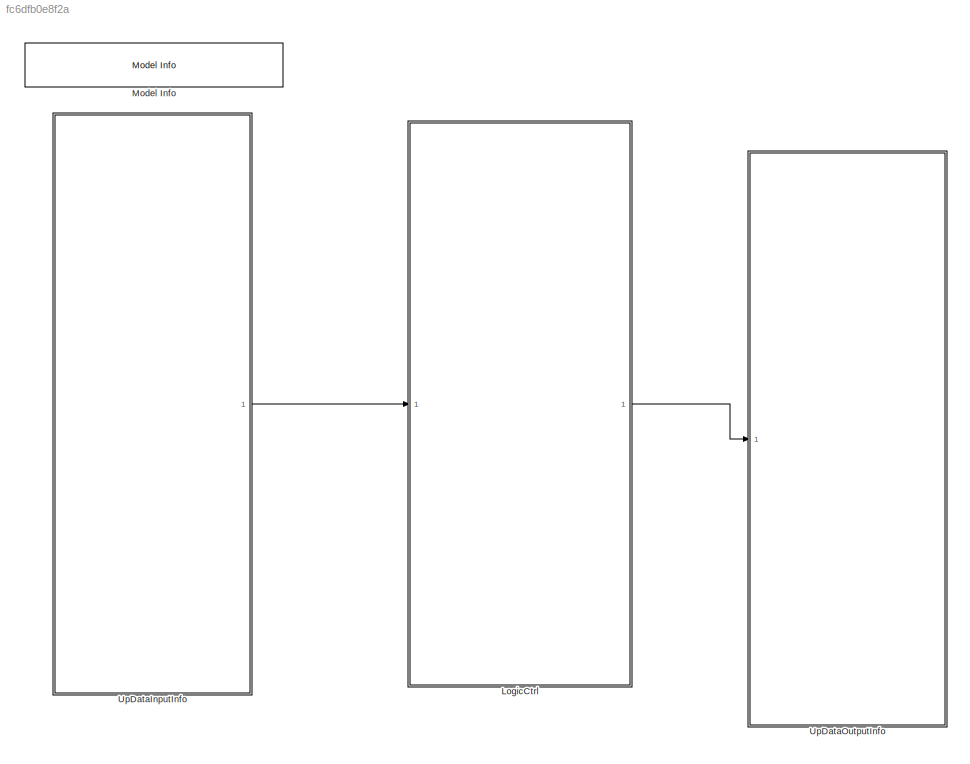
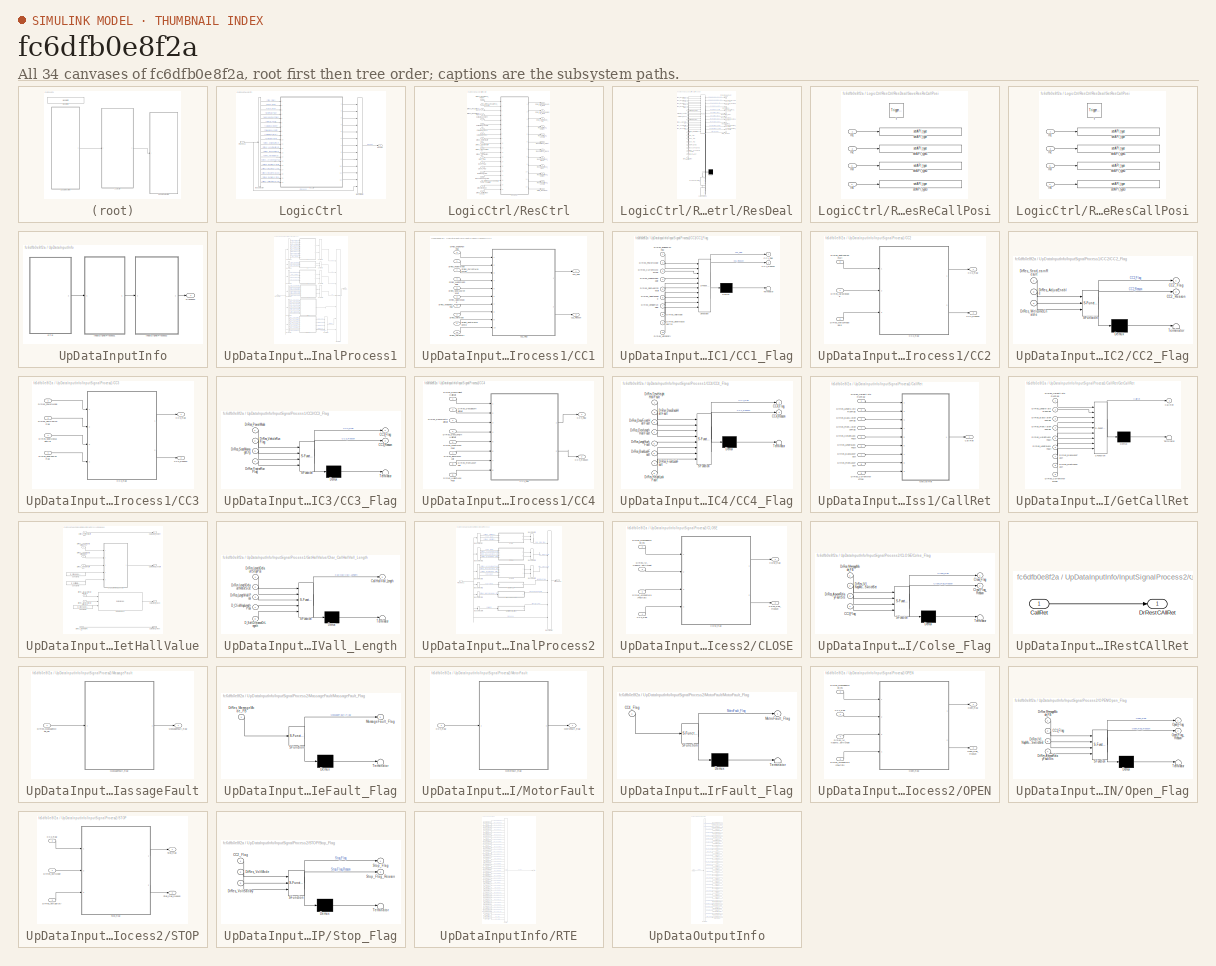
[diagram: thumbnail index - all 34 canvases of the model, root first then tree order]
MODEL slx_fc6dfb0e8f2a
KIND model
BLOCK [SubSystem] LogicCtrl
  Ports = [1, 1]
  Priority = 2
  RTWFcnNameOpts = Use subsystem name
  RTWSystemCode = Nonreusable function
  RequestExecContextInheritance = off
  TreatAsAtomicUnit = on
BLOCK [BusCreator] LogicCtrl/Bus Creator
  DisplayOption = bar
  InheritFromInputs = on
  Inputs = 13
  Ports = [13, 1]
BLOCK [BusSelector] LogicCtrl/Bus Selector
  OutputAsBus = off
  OutputSignals = Res_Stop_Flag.Stop_Flag,Res_Open_Flag.Open_Flag,Res_Close_Flag.Close_Flag,MotorFault_Flag,MassageFault_Flag,DrRestCAll_Ret,Process1.CallHallValue.CallHallVall_Height,Process1.CallHallValue.CallHallVall_Length,Process1.CallHallValue.CallHallVall_Back,Process1.CallHallValue.CallHallVall_Front,Process1.Rte_SignalBus1.DrRes_HeightHallPosi,Process1.Rte_SignalBus1.DrRes_LengthHallPosi,Process1.Rte_Signa...<+357ch>
  Ports = [1, 20]
BLOCK [Inport] LogicCtrl/Process2
  IconDisplay = Port number
BLOCK [SubSystem] LogicCtrl/ResCtrl
  AttributesFormatString = %<Description>
  Description = 小憩逻辑处理
  Ports = [20, 12]
  RequestExecContextInheritance = off
BLOCK [Inport] LogicCtrl/ResCtrl/CallHallVall_Back
  IconDisplay = Port number
  Port = 9
BLOCK [Inport] LogicCtrl/ResCtrl/CallHallVall_Front
  IconDisplay = Port number
  Port = 10
BLOCK [Inport] LogicCtrl/ResCtrl/CallHallVall_Height
  IconDisplay = Port number
  Port = 7
BLOCK [Inport] LogicCtrl/ResCtrl/CallHallVall_Length
  IconDisplay = Port number
  Port = 8
BLOCK [Inport] LogicCtrl/ResCtrl/Close_Flag
  IconDisplay = Port number
  Port = 3
BLOCK [Outport] LogicCtrl/ResCtrl/DSM_MassageLevel_Req
  IconDisplay = Port number
BLOCK [Outport] LogicCtrl/ResCtrl/DSM_MassageMode_Req
  IconDisplay = Port number
  Port = 2
BLOCK [Outport] LogicCtrl/ResCtrl/DSM_NapMode_FB
  IconDisplay = Port number
  Port = 3
BLOCK [Inport] LogicCtrl/ResCtrl/DrRes_AnyoneRelayFaultSts
  IconDisplay = Port number
  Port = 15
BLOCK [Inport] LogicCtrl/ResCtrl/DrRes_BackHallPosi
  IconDisplay = Port number
  Port = 13
BLOCK [Inport] LogicCtrl/ResCtrl/DrRes_CurrentMoveType
  IconDisplay = Port number
  Port = 20
BLOCK [Inport] LogicCtrl/ResCtrl/DrRes_FrontHallPosi
  IconDisplay = Port number
  Port = 14
BLOCK [Inport] LogicCtrl/ResCtrl/DrRes_HeightHallPosi
  IconDisplay = Port number
  Port = 11
BLOCK [Inport] LogicCtrl/ResCtrl/DrRes_LengthHallPosi
  IconDisplay = Port number
  Port = 12
BLOCK [Inport] LogicCtrl/ResCtrl/DrResl_ReCallPosi_Back
  IconDisplay = Port number
  Port = 18
BLOCK [Inport] LogicCtrl/ResCtrl/DrResl_ReCallPosi_Front
  IconDisplay = Port number
  Port = 19
BLOCK [Inport] LogicCtrl/ResCtrl/DrResl_ReCallPosi_Height
  IconDisplay = Port number
  Port = 16
BLOCK [Inport] LogicCtrl/ResCtrl/DrResl_ReCallPosi_Length
  IconDisplay = Port number
  Port = 17
BLOCK [Inport] LogicCtrl/ResCtrl/DrRestCAll_Ret
  IconDisplay = Port number
  Port = 6
BLOCK [Inport] LogicCtrl/ResCtrl/MassageFault_Flag
  IconDisplay = Port number
  Port = 5
BLOCK [Inport] LogicCtrl/ResCtrl/MotorFault_Flag
  IconDisplay = Port number
  Port = 4
BLOCK [Inport] LogicCtrl/ResCtrl/Open_Flag
  IconDisplay = Port number
  Port = 2
BLOCK [Outport] LogicCtrl/ResCtrl/ResCallPosi_Back
  IconDisplay = Port number
  Port = 7
BLOCK [Outport] LogicCtrl/ResCtrl/ResCallPosi_Front
  IconDisplay = Port number
  Port = 6
BLOCK [Outport] LogicCtrl/ResCtrl/ResCallPosi_Height
  IconDisplay = Port number
  Port = 4
BLOCK [Outport] LogicCtrl/ResCtrl/ResCallPosi_Length
  IconDisplay = Port number
  Port = 5
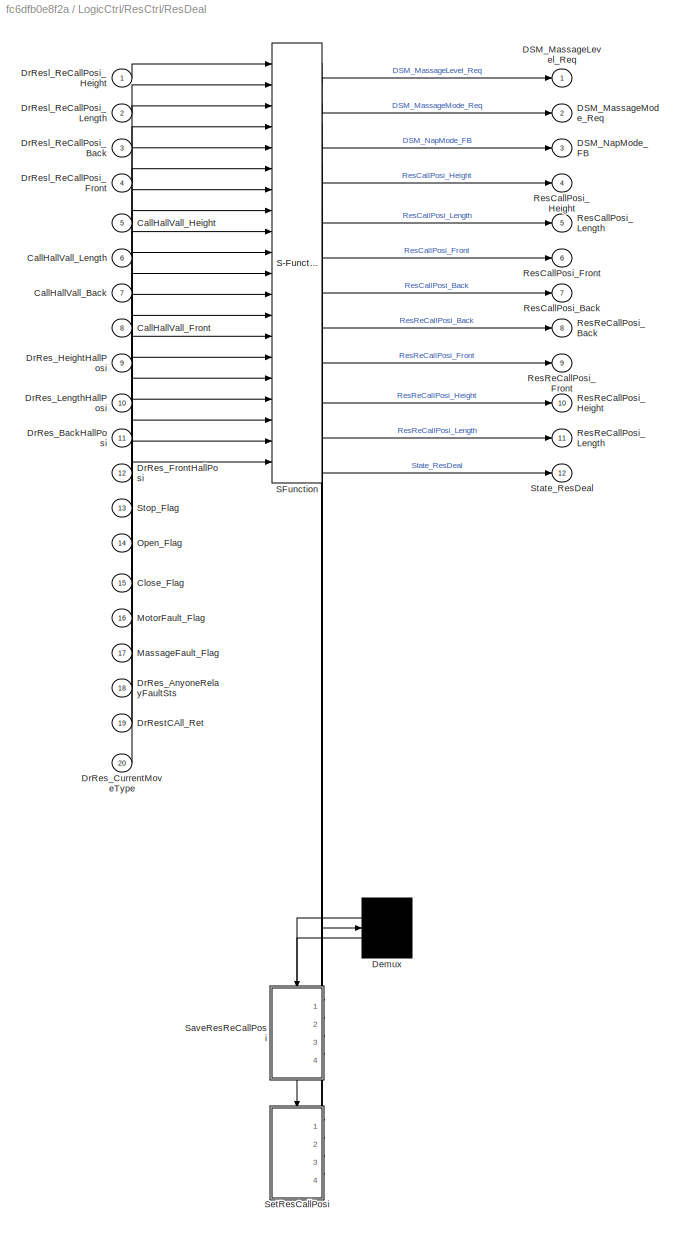
BLOCK [SubSystem] LogicCtrl/ResCtrl/ResDeal
  ErrorFcn = Stateflow.Translate.translate
  PermitHierarchicalResolution = ExplicitOnly
  Ports = [20, 12]
  RequestExecContextInheritance = off
  SFBlockType = Chart
  TreatAsAtomicUnit = on
BLOCK [Demux] LogicCtrl/ResCtrl/ResDeal/ Demux 
  Outputs = 2
  Ports = [1, 2]
BLOCK [S-Function] LogicCtrl/ResCtrl/ResDeal/ SFunction 
  EnableBusSupport = on
  FunctionName = sf_sfun
  Parameters = FALSE,TRUE
  PortCounts = [20 21]
  Ports = [20, 21]
  SFcnIsStateOwnerBlock = off
  SFunctionDeploymentMode = off
  Tag = Stateflow S-Function Appl_DrRestMode_CtrlModel 8
BLOCK [Inport] LogicCtrl/ResCtrl/ResDeal/CallHallVall_Back
  IconDisplay = Port number
  Port = 7
BLOCK [Inport] LogicCtrl/ResCtrl/ResDeal/CallHallVall_Front
  IconDisplay = Port number
  Port = 8
BLOCK [Inport] LogicCtrl/ResCtrl/ResDeal/CallHallVall_Height
  IconDisplay = Port number
  Port = 5
BLOCK [Inport] LogicCtrl/ResCtrl/ResDeal/CallHallVall_Length
  IconDisplay = Port number
  Port = 6
BLOCK [Inport] LogicCtrl/ResCtrl/ResDeal/Close_Flag
  IconDisplay = Port number
  Port = 15
BLOCK [Outport] LogicCtrl/ResCtrl/ResDeal/DSM_MassageLevel_Req
  IconDisplay = Port number
BLOCK [Outport] LogicCtrl/ResCtrl/ResDeal/DSM_MassageMode_Req
  IconDisplay = Port number
  Port = 2
BLOCK [Outport] LogicCtrl/ResCtrl/ResDeal/DSM_NapMode_FB
  IconDisplay = Port number
  Port = 3
BLOCK [Inport] LogicCtrl/ResCtrl/ResDeal/DrRes_AnyoneRelayFaultSts
  IconDisplay = Port number
  Port = 18
BLOCK [Inport] LogicCtrl/ResCtrl/ResDeal/DrRes_BackHallPosi
  IconDisplay = Port number
  Port = 11
BLOCK [Inport] LogicCtrl/ResCtrl/ResDeal/DrRes_CurrentMoveType
  IconDisplay = Port number
  Port = 20
BLOCK [Inport] LogicCtrl/ResCtrl/ResDeal/DrRes_FrontHallPosi
  IconDisplay = Port number
  Port = 12
BLOCK [Inport] LogicCtrl/ResCtrl/ResDeal/DrRes_HeightHallPosi
  IconDisplay = Port number
  Port = 9
BLOCK [Inport] LogicCtrl/ResCtrl/ResDeal/DrRes_LengthHallPosi
  IconDisplay = Port number
  Port = 10
BLOCK [Inport] LogicCtrl/ResCtrl/ResDeal/DrResl_ReCallPosi_Back
  IconDisplay = Port number
  Port = 3
BLOCK [Inport] LogicCtrl/ResCtrl/ResDeal/DrResl_ReCallPosi_Front
  IconDisplay = Port number
  Port = 4
BLOCK [Inport] LogicCtrl/ResCtrl/ResDeal/DrResl_ReCallPosi_Height
  IconDisplay = Port number
BLOCK [Inport] LogicCtrl/ResCtrl/ResDeal/DrResl_ReCallPosi_Length
  IconDisplay = Port number
  Port = 2
BLOCK [Inport] LogicCtrl/ResCtrl/ResDeal/DrRestCAll_Ret
  IconDisplay = Port number
  Port = 19
BLOCK [Inport] LogicCtrl/ResCtrl/ResDeal/MassageFault_Flag
  IconDisplay = Port number
  Port = 17
BLOCK [Inport] LogicCtrl/ResCtrl/ResDeal/MotorFault_Flag
  IconDisplay = Port number
  Port = 16
BLOCK [Inport] LogicCtrl/ResCtrl/ResDeal/Open_Flag
  IconDisplay = Port number
  Port = 14
BLOCK [Outport] LogicCtrl/ResCtrl/ResDeal/ResCallPosi_Back
  IconDisplay = Port number
  Port = 7
BLOCK [Outport] LogicCtrl/ResCtrl/ResDeal/ResCallPosi_Front
  IconDisplay = Port number
  Port = 6
BLOCK [Outport] LogicCtrl/ResCtrl/ResDeal/ResCallPosi_Height
  IconDisplay = Port number
  Port = 4
BLOCK [Outport] LogicCtrl/ResCtrl/ResDeal/ResCallPosi_Length
  IconDisplay = Port number
  Port = 5
BLOCK [Outport] LogicCtrl/ResCtrl/ResDeal/ResReCallPosi_Back
  IconDisplay = Port number
  Port = 8
BLOCK [Outport] LogicCtrl/ResCtrl/ResDeal/ResReCallPosi_Front
  IconDisplay = Port number
  Port = 9
BLOCK [Outport] LogicCtrl/ResCtrl/ResDeal/ResReCallPosi_Height
  IconDisplay = Port number
  Port = 10
BLOCK [Outport] LogicCtrl/ResCtrl/ResDeal/ResReCallPosi_Length
  IconDisplay = Port number
  Port = 11
BLOCK [SubSystem] LogicCtrl/ResCtrl/ResDeal/SaveResReCallPosi
  Ports = [4, 0, 0, 1]
  PreDeleteFcn = Stateflow.SLINSF.SimulinkMan.removePreDeleteFcn
  RequestExecContextInheritance = off
  UndoDeleteFcn = Stateflow.SLINSF.SimulinkMan.restorePreDeleteFcn
BLOCK [Inport] LogicCtrl/ResCtrl/ResDeal/SaveResReCallPosi/In1
  IconDisplay = Port number
BLOCK [Inport] LogicCtrl/ResCtrl/ResDeal/SaveResReCallPosi/In3
  IconDisplay = Port number
  Port = 3
BLOCK [TriggerPort] LogicCtrl/ResCtrl/ResDeal/SaveResReCallPosi/f
  CopyFcn = Stateflow.SLINSF.SimulinkMan.removeBlockPreDeleteFcn
  Ports = []
  PreDeleteFcn = Stateflow.SLINSF.SimulinkMan.unsafePredeleteFcn
  StatesWhenEnabling = held
  TriggerType = function-call
  VariantControl = (inherit)
BLOCK [Inport] LogicCtrl/ResCtrl/ResDeal/SaveResReCallPosi/ln2
  IconDisplay = Port number
  Port = 2
BLOCK [Inport] LogicCtrl/ResCtrl/ResDeal/SaveResReCallPosi/ln4
  IconDisplay = Port number
  Port = 4
BLOCK [Reference] LogicCtrl/ResCtrl/ResDeal/SaveResReCallPosi/setAPI_type  REF=DareLib/Dare/setAPI_type
  AttributesFormatString = %<g_funcname>
  Ports = [1]
  SourceBlock = DareLib/Dare/setAPI_type
  SourceProductName = Dare Library
  SourceType = Dare Custom
BLOCK [Reference] LogicCtrl/ResCtrl/ResDeal/SaveResReCallPosi/setAPI_type1  REF=DareLib/Dare/setAPI_type
  AttributesFormatString = %<g_funcname>
  Ports = [1]
  SourceBlock = DareLib/Dare/setAPI_type
  SourceProductName = Dare Library
  SourceType = Dare Custom
BLOCK [Reference] LogicCtrl/ResCtrl/ResDeal/SaveResReCallPosi/setAPI_type2  REF=DareLib/Dare/setAPI_type
  AttributesFormatString = %<g_funcname>
  Ports = [1]
  SourceBlock = DareLib/Dare/setAPI_type
  SourceProductName = Dare Library
  SourceType = Dare Custom
BLOCK [Reference] LogicCtrl/ResCtrl/ResDeal/SaveResReCallPosi/setAPI_type3  REF=DareLib/Dare/setAPI_type
  AttributesFormatString = %<g_funcname>
  Ports = [1]
  SourceBlock = DareLib/Dare/setAPI_type
  SourceProductName = Dare Library
  SourceType = Dare Custom
BLOCK [SubSystem] LogicCtrl/ResCtrl/ResDeal/SetResCallPosi
  Ports = [4, 0, 0, 1]
  PreDeleteFcn = Stateflow.SLINSF.SimulinkMan.removePreDeleteFcn
  RequestExecContextInheritance = off
  UndoDeleteFcn = Stateflow.SLINSF.SimulinkMan.restorePreDeleteFcn
BLOCK [Inport] LogicCtrl/ResCtrl/ResDeal/SetResCallPosi/In1
  IconDisplay = Port number
BLOCK [Inport] LogicCtrl/ResCtrl/ResDeal/SetResCallPosi/In3
  IconDisplay = Port number
  Port = 3
BLOCK [TriggerPort] LogicCtrl/ResCtrl/ResDeal/SetResCallPosi/f
  CopyFcn = Stateflow.SLINSF.SimulinkMan.removeBlockPreDeleteFcn
  Ports = []
  PreDeleteFcn = Stateflow.SLINSF.SimulinkMan.unsafePredeleteFcn
  StatesWhenEnabling = held
  TriggerType = function-call
  VariantControl = (inherit)
BLOCK [Inport] LogicCtrl/ResCtrl/ResDeal/SetResCallPosi/ln2
  IconDisplay = Port number
  Port = 2
BLOCK [Inport] LogicCtrl/ResCtrl/ResDeal/SetResCallPosi/ln4
  IconDisplay = Port number
  Port = 4
BLOCK [Reference] LogicCtrl/ResCtrl/ResDeal/SetResCallPosi/setAPI_type  REF=DareLib/Dare/setAPI_type
  AttributesFormatString = %<g_funcname>
  Ports = [1]
  SourceBlock = DareLib/Dare/setAPI_type
  SourceProductName = Dare Library
  SourceType = Dare Custom
BLOCK [Reference] LogicCtrl/ResCtrl/ResDeal/SetResCallPosi/setAPI_type1  REF=DareLib/Dare/setAPI_type
  AttributesFormatString = %<g_funcname>
  Ports = [1]
  SourceBlock = DareLib/Dare/setAPI_type
  SourceProductName = Dare Library
  SourceType = Dare Custom
BLOCK [Reference] LogicCtrl/ResCtrl/ResDeal/SetResCallPosi/setAPI_type2  REF=DareLib/Dare/setAPI_type
  AttributesFormatString = %<g_funcname>
  Ports = [1]
  SourceBlock = DareLib/Dare/setAPI_type
  SourceProductName = Dare Library
  SourceType = Dare Custom
BLOCK [Reference] LogicCtrl/ResCtrl/ResDeal/SetResCallPosi/setAPI_type3  REF=DareLib/Dare/setAPI_type
  AttributesFormatString = %<g_funcname>
  Ports = [1]
  SourceBlock = DareLib/Dare/setAPI_type
  SourceProductName = Dare Library
  SourceType = Dare Custom
BLOCK [Outport] LogicCtrl/ResCtrl/ResDeal/State_ResDeal
  IconDisplay = Port number
  Port = 12
BLOCK [Inport] LogicCtrl/ResCtrl/ResDeal/Stop_Flag
  IconDisplay = Port number
  Port = 13
BLOCK [Outport] LogicCtrl/ResCtrl/ResReCallPosi_Back
  IconDisplay = Port number
  Port = 8
BLOCK [Outport] LogicCtrl/ResCtrl/ResReCallPosi_Front
  IconDisplay = Port number
  Port = 9
BLOCK [Outport] LogicCtrl/ResCtrl/ResReCallPosi_Height
  IconDisplay = Port number
  Port = 10
BLOCK [Outport] LogicCtrl/ResCtrl/ResReCallPosi_Length
  IconDisplay = Port number
  Port = 11
BLOCK [Outport] LogicCtrl/ResCtrl/State_ResDeal
  IconDisplay = Port number
  Port = 12
BLOCK [Inport] LogicCtrl/ResCtrl/Stop_Flag
  IconDisplay = Port number
BLOCK [Outport] LogicCtrl/ResOut
  IconDisplay = Port number
BLOCK [Reference] Model Info  REF=simulink/Model-Wide
Utilities/Model Info
  Ports = []
  SourceBlock = simulink/Model-Wide\nUtilities/Model Info
  SourceProductBaseCode = SL
  SourceProductName = Simulink
  SourceType = CMBlock
BLOCK [SubSystem] UpDataInputInfo
  Ports = [0, 1]
  Priority = 1
  RTWFcnNameOpts = Use subsystem name
  RTWSystemCode = Nonreusable function
  RequestExecContextInheritance = off
  TreatAsAtomicUnit = on
BLOCK [SubSystem] UpDataInputInfo/InputSignalProcess1
  AttributesFormatString = %<Description>
  Description = 预处理1
  Ports = [1, 1]
  RTWFcnNameOpts = Use subsystem name
  RTWSystemCode = Nonreusable function
  RequestExecContextInheritance = off
BLOCK [BusCreator] UpDataInputInfo/InputSignalProcess1/Bus Creator
  DisplayOption = bar
  InheritFromInputs = on
  Inputs = 7
  Ports = [7, 1]
BLOCK [BusCreator] UpDataInputInfo/InputSignalProcess1/Bus Creator1
  DisplayOption = bar
  InheritFromInputs = on
  Inputs = 2
  Ports = [2, 1]
BLOCK [BusCreator] UpDataInputInfo/InputSignalProcess1/Bus Creator4
  DisplayOption = bar
  InheritFromInputs = on
  Inputs = 2
  Ports = [2, 1]
BLOCK [BusCreator] UpDataInputInfo/InputSignalProcess1/Bus Creator5
  DisplayOption = bar
  InheritFromInputs = on
  Inputs = 2
  Ports = [2, 1]
BLOCK [BusCreator] UpDataInputInfo/InputSignalProcess1/Bus Creator6
  DisplayOption = bar
  InheritFromInputs = on
  Inputs = 2
  Ports = [2, 1]
BLOCK [BusCreator] UpDataInputInfo/InputSignalProcess1/Bus Creator8
  DisplayOption = bar
  InheritFromInputs = on
  Inputs = 4
  Ports = [4, 1]
BLOCK [BusSelector] UpDataInputInfo/InputSignalProcess1/Bus Selector
  OutputAsBus = off
  OutputSignals = DrRes_PowerMode,DrRes_VoltMode,DrRes_AdjustEnable,DrRes_WelcomeEnable,DrRes_SeatMassageCfg,DrRes_SeatLearnResult,DrRes_CurrentMoveType,DrRes_VehicleRunFlag,DrRes_EngineRunFlag,DrRes_VoltSatisfy
  Ports = [1, 10]
BLOCK [BusSelector] UpDataInputInfo/InputSignalProcess1/Bus Selector1
  OutputAsBus = off
  OutputSignals = DrRes_AdjustEnable,DrRes_WelcomeEnable,DrRes_SeatLearnResult
  Ports = [1, 3]
BLOCK [BusSelector] UpDataInputInfo/InputSignalProcess1/Bus Selector2
  OutputAsBus = off
  OutputSignals = DrRes_DescHeightHallFault,DrRes_DescLengthHallFault,DrRes_DescBackHallFault,DrRes_DescFrontHallFault,DrRes_HeightLockFault,DrRes_LengthLockFault,DrRes_BackLockFault,DrRes_FrontLockFault
  Ports = [1, 8]
BLOCK [BusSelector] UpDataInputInfo/InputSignalProcess1/Bus Selector3
  OutputAsBus = off
  OutputSignals = DrRes_SeatMassageCfg,DrRes_PowerMode,DrRes_VehicleRunFlag,DrRes_EngineRunFlag
  Ports = [1, 4]
BLOCK [BusSelector] UpDataInputInfo/InputSignalProcess1/Bus Selector4
  OutputAsBus = off
  OutputSignals = DrRes_HeightAutoRunFlag,DrRes_LengthAutoRunFlag,DrRes_BackAutoRunFlag,DrRes_FrontAutoRunFlag,DrRes_HeightLockFault,DrRes_LengthLockFault,DrRes_BackLockFault,DrRes_FrontLockFault,DrRes_CurrentMoveType
  Ports = [1, 9]
BLOCK [BusSelector] UpDataInputInfo/InputSignalProcess1/Bus Selector5
  OutputAsBus = off
  OutputSignals = DrRes_LengthDefaultMotorSize,DrRes_BackDefaultMotorSize,DrRes_LengthDefaultStopPos,DrRes_BackDefaultStopPos,DrRes_HeightHallPosi,DrRes_LengthHallPosi,DrRes_FrontHallPosi
  Ports = [1, 7]
BLOCK [SubSystem] UpDataInputInfo/InputSignalProcess1/CC1
  AttributesFormatString = %<Description>
  Ports = [10, 2]
  RequestExecContextInheritance = off
BLOCK [SubSystem] UpDataInputInfo/InputSignalProcess1/CC1/CC1_Flag
  ErrorFcn = Stateflow.Translate.translate
  PermitHierarchicalResolution = ExplicitOnly
  Ports = [10, 2]
  RequestExecContextInheritance = off
  SFBlockType = Chart
  TreatAsAtomicUnit = on
BLOCK [Outport] UpDataInputInfo/InputSignalProcess1/CC1/CC1_Flag 
  IconDisplay = Port number
BLOCK [Demux] UpDataInputInfo/InputSignalProcess1/CC1/CC1_Flag/ Demux 
  Outputs = 1
  Ports = [1, 1]
BLOCK [S-Function] UpDataInputInfo/InputSignalProcess1/CC1/CC1_Flag/ SFunction 
  EnableBusSupport = on
  FunctionName = sf_sfun
  Parameters = D_DRMEM_SPEED_5,FALSE,TRUE
  PortCounts = [10 3]
  Ports = [10, 3]
  SFcnIsStateOwnerBlock = off
  SFunctionDeploymentMode = off
  Tag = Stateflow S-Function Appl_DrRestMode_CtrlModel 11
BLOCK [Terminator] UpDataInputInfo/InputSignalProcess1/CC1/CC1_Flag/ Terminator 
BLOCK [Outport] UpDataInputInfo/InputSignalProcess1/CC1/CC1_Flag/CC1_Flag
  IconDisplay = Port number
BLOCK [Outport] UpDataInputInfo/InputSignalProcess1/CC1/CC1_Flag/CC1_Reason
  IconDisplay = Port number
  Port = 2
BLOCK [Inport] UpDataInputInfo/InputSignalProcess1/CC1/CC1_Flag/DrRes_AdjustEnable
  IconDisplay = Port number
  Port = 6
BLOCK [Inport] UpDataInputInfo/InputSignalProcess1/CC1/CC1_Flag/DrRes_CurrentMoveType
  IconDisplay = Port number
  Port = 3
BLOCK [Inport] UpDataInputInfo/InputSignalProcess1/CC1/CC1_Flag/DrRes_EngineRunFlag
  IconDisplay = Port number
BLOCK [Inport] UpDataInputInfo/InputSignalProcess1/CC1/CC1_Flag/DrRes_PowerMode
  IconDisplay = Port number
  Port = 2
BLOCK [Inport] UpDataInputInfo/InputSignalProcess1/CC1/CC1_Flag/DrRes_SeatLearnResult
  IconDisplay = Port number
  Port = 5
BLOCK [Inport] UpDataInputInfo/InputSignalProcess1/CC1/CC1_Flag/DrRes_SeatMassageCfg
  IconDisplay = Port number
  Port = 9
BLOCK [Inport] UpDataInputInfo/InputSignalProcess1/CC1/CC1_Flag/DrRes_VehicleRunFlag
  IconDisplay = Port number
  Port = 7
BLOCK [Inport] UpDataInputInfo/InputSignalProcess1/CC1/CC1_Flag/DrRes_VoltMode
  IconDisplay = Port number
  Port = 8
BLOCK [Inport] UpDataInputInfo/InputSignalProcess1/CC1/CC1_Flag/DrRes_VoltSatisfy
  IconDisplay = Port number
  Port = 10
BLOCK [Inport] UpDataInputInfo/InputSignalProcess1/CC1/CC1_Flag/DrRes_WelcomeEnable
  IconDisplay = Port number
  Port = 4
BLOCK [Outport] UpDataInputInfo/InputSignalProcess1/CC1/CC1_Reason
  IconDisplay = Port number
  Port = 2
BLOCK [Inport] UpDataInputInfo/InputSignalProcess1/CC1/DrRes_AdjustEnable
  IconDisplay = Port number
  Port = 3
BLOCK [Inport] UpDataInputInfo/InputSignalProcess1/CC1/DrRes_CurrentMoveType
  IconDisplay = Port number
  Port = 7
BLOCK [Inport] UpDataInputInfo/InputSignalProcess1/CC1/DrRes_EngineRunFlag
  IconDisplay = Port number
  Port = 9
BLOCK [Inport] UpDataInputInfo/InputSignalProcess1/CC1/DrRes_PowerMode
  IconDisplay = Port number
BLOCK [Inport] UpDataInputInfo/InputSignalProcess1/CC1/DrRes_SeatLearnResult
  IconDisplay = Port number
  Port = 6
BLOCK [Inport] UpDataInputInfo/InputSignalProcess1/CC1/DrRes_SeatMassageCfg
  IconDisplay = Port number
  Port = 5
BLOCK [Inport] UpDataInputInfo/InputSignalProcess1/CC1/DrRes_VehicleRunFlag
  IconDisplay = Port number
  Port = 8
BLOCK [Inport] UpDataInputInfo/InputSignalProcess1/CC1/DrRes_VoltMode
  IconDisplay = Port number
  Port = 2
BLOCK [Inport] UpDataInputInfo/InputSignalProcess1/CC1/DrRes_VoltSatisfy
  IconDisplay = Port number
  Port = 10
BLOCK [Inport] UpDataInputInfo/InputSignalProcess1/CC1/DrRes_WelcomeEnable
  IconDisplay = Port number
  Port = 4
BLOCK [SubSystem] UpDataInputInfo/InputSignalProcess1/CC2
  AttributesFormatString = %<Description>
  Ports = [3, 2]
  RequestExecContextInheritance = off
BLOCK [SubSystem] UpDataInputInfo/InputSignalProcess1/CC2/CC2_Flag
  ErrorFcn = Stateflow.Translate.translate
  PermitHierarchicalResolution = ExplicitOnly
  Ports = [3, 2]
  RequestExecContextInheritance = off
  SFBlockType = Chart
  TreatAsAtomicUnit = on
BLOCK [Outport] UpDataInputInfo/InputSignalProcess1/CC2/CC2_Flag 
  IconDisplay = Port number
BLOCK [Demux] UpDataInputInfo/InputSignalProcess1/CC2/CC2_Flag/ Demux 
  Outputs = 1
  Ports = [1, 1]
BLOCK [S-Function] UpDataInputInfo/InputSignalProcess1/CC2/CC2_Flag/ SFunction 
  EnableBusSupport = on
  FunctionName = sf_sfun
  Parameters = D_DRMEM_SPEED_5,FALSE,TRUE
  PortCounts = [3 3]
  Ports = [3, 3]
  SFcnIsStateOwnerBlock = off
  SFunctionDeploymentMode = off
  Tag = Stateflow S-Function Appl_DrRestMode_CtrlModel 6
BLOCK [Terminator] UpDataInputInfo/InputSignalProcess1/CC2/CC2_Flag/ Terminator 
BLOCK [Outport] UpDataInputInfo/InputSignalProcess1/CC2/CC2_Flag/CC2_Flag
  IconDisplay = Port number
BLOCK [Outport] UpDataInputInfo/InputSignalProcess1/CC2/CC2_Flag/CC2_Reason
  IconDisplay = Port number
  Port = 2
BLOCK [Inport] UpDataInputInfo/InputSignalProcess1/CC2/CC2_Flag/DrRes_AdjustEnable
  IconDisplay = Port number
  Port = 2
BLOCK [Inport] UpDataInputInfo/InputSignalProcess1/CC2/CC2_Flag/DrRes_SeatLearnResult
  IconDisplay = Port number
BLOCK [Inport] UpDataInputInfo/InputSignalProcess1/CC2/CC2_Flag/DrRes_WelcomeEnable
  IconDisplay = Port number
  Port = 3
BLOCK [Outport] UpDataInputInfo/InputSignalProcess1/CC2/CC2_Reason
  IconDisplay = Port number
  Port = 2
BLOCK [Inport] UpDataInputInfo/InputSignalProcess1/CC2/DrRes_AdjustEnable
  IconDisplay = Port number
BLOCK [Inport] UpDataInputInfo/InputSignalProcess1/CC2/DrRes_SeatLearnResult
  IconDisplay = Port number
  Port = 3
BLOCK [Inport] UpDataInputInfo/InputSignalProcess1/CC2/DrRes_WelcomeEnable
  IconDisplay = Port number
  Port = 2
BLOCK [SubSystem] UpDataInputInfo/InputSignalProcess1/CC3
  AttributesFormatString = %<Description>
  Ports = [4, 2]
  RequestExecContextInheritance = off
BLOCK [SubSystem] UpDataInputInfo/InputSignalProcess1/CC3/CC3_Flag
  ErrorFcn = Stateflow.Translate.translate
  PermitHierarchicalResolution = ExplicitOnly
  Ports = [4, 2]
  RequestExecContextInheritance = off
  SFBlockType = Chart
  TreatAsAtomicUnit = on
BLOCK [Outport] UpDataInputInfo/InputSignalProcess1/CC3/CC3_Flag 
  IconDisplay = Port number
BLOCK [Demux] UpDataInputInfo/InputSignalProcess1/CC3/CC3_Flag/ Demux 
  Outputs = 1
  Ports = [1, 1]
BLOCK [S-Function] UpDataInputInfo/InputSignalProcess1/CC3/CC3_Flag/ SFunction 
  EnableBusSupport = on
  FunctionName = sf_sfun
  Parameters = D_DRMEM_SPEED_5,FALSE,TRUE
  PortCounts = [4 3]
  Ports = [4, 3]
  SFcnIsStateOwnerBlock = off
  SFunctionDeploymentMode = off
  Tag = Stateflow S-Function Appl_DrRestMode_CtrlModel 1
BLOCK [Terminator] UpDataInputInfo/InputSignalProcess1/CC3/CC3_Flag/ Terminator 
BLOCK [Outport] UpDataInputInfo/InputSignalProcess1/CC3/CC3_Flag/CC3_Flag
  IconDisplay = Port number
BLOCK [Outport] UpDataInputInfo/InputSignalProcess1/CC3/CC3_Flag/CC3_Reason
  IconDisplay = Port number
  Port = 2
BLOCK [Inport] UpDataInputInfo/InputSignalProcess1/CC3/CC3_Flag/DrRes_EngineRunFlag
  IconDisplay = Port number
  Port = 4
BLOCK [Inport] UpDataInputInfo/InputSignalProcess1/CC3/CC3_Flag/DrRes_PowerMode
  IconDisplay = Port number
BLOCK [Inport] UpDataInputInfo/InputSignalProcess1/CC3/CC3_Flag/DrRes_SeatMassageCfg
  IconDisplay = Port number
  Port = 3
BLOCK [Inport] UpDataInputInfo/InputSignalProcess1/CC3/CC3_Flag/DrRes_VehicleRunFlag
  IconDisplay = Port number
  Port = 2
BLOCK [Outport] UpDataInputInfo/InputSignalProcess1/CC3/CC3_Reason
  IconDisplay = Port number
  Port = 2
BLOCK [Inport] UpDataInputInfo/InputSignalProcess1/CC3/DrRes_EngineRunFlag
  IconDisplay = Port number
  Port = 4
BLOCK [Inport] UpDataInputInfo/InputSignalProcess1/CC3/DrRes_PowerMode
  IconDisplay = Port number
  Port = 2
BLOCK [Inport] UpDataInputInfo/InputSignalProcess1/CC3/DrRes_SeatMassageCfg
  IconDisplay = Port number
BLOCK [Inport] UpDataInputInfo/InputSignalProcess1/CC3/DrRes_VehicleRunFlag
  IconDisplay = Port number
  Port = 3
BLOCK [SubSystem] UpDataInputInfo/InputSignalProcess1/CC4
  AttributesFormatString = %<Description>
  Ports = [8, 2]
  RequestExecContextInheritance = off
BLOCK [SubSystem] UpDataInputInfo/InputSignalProcess1/CC4/CC4_Flag
  ErrorFcn = Stateflow.Translate.translate
  PermitHierarchicalResolution = ExplicitOnly
  Ports = [8, 2]
  RequestExecContextInheritance = off
  SFBlockType = Chart
  TreatAsAtomicUnit = on
BLOCK [Outport] UpDataInputInfo/InputSignalProcess1/CC4/CC4_Flag 
  IconDisplay = Port number
BLOCK [Demux] UpDataInputInfo/InputSignalProcess1/CC4/CC4_Flag/ Demux 
  Outputs = 1
  Ports = [1, 1]
BLOCK [S-Function] UpDataInputInfo/InputSignalProcess1/CC4/CC4_Flag/ SFunction 
  EnableBusSupport = on
  FunctionName = sf_sfun
  Parameters = FALSE,TRUE
  PortCounts = [8 3]
  Ports = [8, 3]
  SFcnIsStateOwnerBlock = off
  SFunctionDeploymentMode = off
  Tag = Stateflow S-Function Appl_DrRestMode_CtrlModel 7
BLOCK [Terminator] UpDataInputInfo/InputSignalProcess1/CC4/CC4_Flag/ Terminator 
BLOCK [Outport] UpDataInputInfo/InputSignalProcess1/CC4/CC4_Flag/CC4_Flag
  IconDisplay = Port number
BLOCK [Outport] UpDataInputInfo/InputSignalProcess1/CC4/CC4_Flag/CC4_Reason
  IconDisplay = Port number
  Port = 2
BLOCK [Inport] UpDataInputInfo/InputSignalProcess1/CC4/CC4_Flag/DrRes_BackLockFault
  IconDisplay = Port number
  Port = 6
BLOCK [Inport] UpDataInputInfo/InputSignalProcess1/CC4/CC4_Flag/DrRes_DescBackHallFault
  IconDisplay = Port number
  Port = 2
BLOCK [Inport] UpDataInputInfo/InputSignalProcess1/CC4/CC4_Flag/DrRes_DescFrontHallFault
  IconDisplay = Port number
  Port = 3
BLOCK [Inport] UpDataInputInfo/InputSignalProcess1/CC4/CC4_Flag/DrRes_DescHeightHallFault
  IconDisplay = Port number
BLOCK [Inport] UpDataInputInfo/InputSignalProcess1/CC4/CC4_Flag/DrRes_DescLengthHallFault
  IconDisplay = Port number
  Port = 4
BLOCK [Inport] UpDataInputInfo/InputSignalProcess1/CC4/CC4_Flag/DrRes_FrontLockFault
  IconDisplay = Port number
  Port = 7
BLOCK [Inport] UpDataInputInfo/InputSignalProcess1/CC4/CC4_Flag/DrRes_HeightLockFault
  IconDisplay = Port number
  Port = 8
BLOCK [Inport] UpDataInputInfo/InputSignalProcess1/CC4/CC4_Flag/DrRes_LengthLockFault
  IconDisplay = Port number
  Port = 5
BLOCK [Outport] UpDataInputInfo/InputSignalProcess1/CC4/CC4_Reason
  IconDisplay = Port number
  Port = 2
BLOCK [Inport] UpDataInputInfo/InputSignalProcess1/CC4/DrRes_BackLockFault
  IconDisplay = Port number
  Port = 7
BLOCK [Inport] UpDataInputInfo/InputSignalProcess1/CC4/DrRes_DescBackHallFault
  IconDisplay = Port number
  Port = 3
BLOCK [Inport] UpDataInputInfo/InputSignalProcess1/CC4/DrRes_DescFrontHallFault
  IconDisplay = Port number
  Port = 4
BLOCK [Inport] UpDataInputInfo/InputSignalProcess1/CC4/DrRes_DescHeightHallFault
  IconDisplay = Port number
BLOCK [Inport] UpDataInputInfo/InputSignalProcess1/CC4/DrRes_DescLengthHallFault
  IconDisplay = Port number
  Port = 2
BLOCK [Inport] UpDataInputInfo/InputSignalProcess1/CC4/DrRes_FrontLockFault
  IconDisplay = Port number
  Port = 8
BLOCK [Inport] UpDataInputInfo/InputSignalProcess1/CC4/DrRes_HeightLockFault
  IconDisplay = Port number
  Port = 5
BLOCK [Inport] UpDataInputInfo/InputSignalProcess1/CC4/DrRes_LengthLockFault
  IconDisplay = Port number
  Port = 6
BLOCK [SubSystem] UpDataInputInfo/InputSignalProcess1/CallRet
  AttributesFormatString = %<Description>
  Description = 坐标调用结果
  Ports = [9, 1]
  RequestExecContextInheritance = off
BLOCK [Outport] UpDataInputInfo/InputSignalProcess1/CallRet/CallRet
  IconDisplay = Port number
BLOCK [Inport] UpDataInputInfo/InputSignalProcess1/CallRet/DrRes_BackAutoRunFlag
  IconDisplay = Port number
  Port = 3
BLOCK [Inport] UpDataInputInfo/InputSignalProcess1/CallRet/DrRes_BackLockFault
  IconDisplay = Port number
  Port = 7
BLOCK [Inport] UpDataInputInfo/InputSignalProcess1/CallRet/DrRes_CurrentMoveType
  IconDisplay = Port number
  Port = 9
BLOCK [Inport] UpDataInputInfo/InputSignalProcess1/CallRet/DrRes_FrontAutoRunFlag
  IconDisplay = Port number
  Port = 4
BLOCK [Inport] UpDataInputInfo/InputSignalProcess1/CallRet/DrRes_FrontLockFault
  IconDisplay = Port number
  Port = 8
BLOCK [Inport] UpDataInputInfo/InputSignalProcess1/CallRet/DrRes_HeightAutoRunFlag
  IconDisplay = Port number
BLOCK [Inport] UpDataInputInfo/InputSignalProcess1/CallRet/DrRes_HeightLockFault
  IconDisplay = Port number
  Port = 5
BLOCK [Inport] UpDataInputInfo/InputSignalProcess1/CallRet/DrRes_LengthAutoRunFlag
  IconDisplay = Port number
  Port = 2
BLOCK [Inport] UpDataInputInfo/InputSignalProcess1/CallRet/DrRes_LengthLockFault
  IconDisplay = Port number
  Port = 6
BLOCK [SubSystem] UpDataInputInfo/InputSignalProcess1/CallRet/GetCallRet
  ErrorFcn = Stateflow.Translate.translate
  PermitHierarchicalResolution = ExplicitOnly
  Ports = [9, 1]
  RequestExecContextInheritance = off
  SFBlockType = Chart
  TreatAsAtomicUnit = on
BLOCK [Demux] UpDataInputInfo/InputSignalProcess1/CallRet/GetCallRet/ Demux 
  Outputs = 1
  Ports = [1, 1]
BLOCK [S-Function] UpDataInputInfo/InputSignalProcess1/CallRet/GetCallRet/ SFunction 
  EnableBusSupport = on
  FunctionName = sf_sfun
  Parameters = FALSE,TRUE
  PortCounts = [9 2]
  Ports = [9, 2]
  SFcnIsStateOwnerBlock = off
  SFunctionDeploymentMode = off
  Tag = Stateflow S-Function Appl_DrRestMode_CtrlModel 2
BLOCK [Terminator] UpDataInputInfo/InputSignalProcess1/CallRet/GetCallRet/ Terminator 
BLOCK [Outport] UpDataInputInfo/InputSignalProcess1/CallRet/GetCallRet/CallRet
  IconDisplay = Port number
BLOCK [Inport] UpDataInputInfo/InputSignalProcess1/CallRet/GetCallRet/DrRes_BackAutoRunFlag
  IconDisplay = Port number
  Port = 3
BLOCK [Inport] UpDataInputInfo/InputSignalProcess1/CallRet/GetCallRet/DrRes_BackLockFault
  IconDisplay = Port number
  Port = 7
BLOCK [Inport] UpDataInputInfo/InputSignalProcess1/CallRet/GetCallRet/DrRes_CurrentMoveType
  IconDisplay = Port number
  Port = 9
BLOCK [Inport] UpDataInputInfo/InputSignalProcess1/CallRet/GetCallRet/DrRes_FrontAutoRunFlag
  IconDisplay = Port number
  Port = 4
BLOCK [Inport] UpDataInputInfo/InputSignalProcess1/CallRet/GetCallRet/DrRes_FrontLockFault
  IconDisplay = Port number
  Port = 8
BLOCK [Inport] UpDataInputInfo/InputSignalProcess1/CallRet/GetCallRet/DrRes_HeightAutoRunFlag
  IconDisplay = Port number
BLOCK [Inport] UpDataInputInfo/InputSignalProcess1/CallRet/GetCallRet/DrRes_HeightLockFault
  IconDisplay = Port number
  Port = 5
BLOCK [Inport] UpDataInputInfo/InputSignalProcess1/CallRet/GetCallRet/DrRes_LengthAutoRunFlag
  IconDisplay = Port number
  Port = 2
BLOCK [Inport] UpDataInputInfo/InputSignalProcess1/CallRet/GetCallRet/DrRes_LengthLockFault
  IconDisplay = Port number
  Port = 6
BLOCK [SubSystem] UpDataInputInfo/InputSignalProcess1/GetHallValue
  AttributesFormatString = %<Description>
  Description = 获取小憩开启的坐标值
  Ports = [7, 4]
  RequestExecContextInheritance = off
BLOCK [Outport] UpDataInputInfo/InputSignalProcess1/GetHallValue/CallHallVall_Back
  IconDisplay = Port number
  OutDataTypeStr = uint16
  Port = 3
BLOCK [Outport] UpDataInputInfo/InputSignalProcess1/GetHallValue/CallHallVall_Front
  IconDisplay = Port number
  OutDataTypeStr = uint16
  Port = 4
BLOCK [Outport] UpDataInputInfo/InputSignalProcess1/GetHallValue/CallHallVall_Height
  IconDisplay = Port number
  OutDataTypeStr = uint16
BLOCK [Outport] UpDataInputInfo/InputSignalProcess1/GetHallValue/CallHallVall_Length
  IconDisplay = Port number
  OutDataTypeStr = uint16
  Port = 2
BLOCK [SubSystem] UpDataInputInfo/InputSignalProcess1/GetHallValue/Char_CallHallVall_Length
  ErrorFcn = Stateflow.Translate.translate
  PermitHierarchicalResolution = ExplicitOnly
  Ports = [5, 1]
  RequestExecContextInheritance = off
  SFBlockType = Chart
  TreatAsAtomicUnit = on
BLOCK [Demux] UpDataInputInfo/InputSignalProcess1/GetHallValue/Char_CallHallVall_Length/ Demux 
  Outputs = 1
  Ports = [1, 1]
BLOCK [S-Function] UpDataInputInfo/InputSignalProcess1/GetHallValue/Char_CallHallVall_Length/ SFunction 
  EnableBusSupport = on
  FunctionName = sf_sfun
  PortCounts = [5 2]
  Ports = [5, 2]
  SFcnIsStateOwnerBlock = off
  SFunctionDeploymentMode = off
  Tag = Stateflow S-Function Appl_DrRestMode_CtrlModel 5
BLOCK [Terminator] UpDataInputInfo/InputSignalProcess1/GetHallValue/Char_CallHallVall_Length/ Terminator 
BLOCK [Outport] UpDataInputInfo/InputSignalProcess1/GetHallValue/Char_CallHallVall_Length/CallHallVall_Length
  IconDisplay = Port number
BLOCK [Inport] UpDataInputInfo/InputSignalProcess1/GetHallValue/Char_CallHallVall_Length/D_ClickNapLengthPosi
  IconDisplay = Port number
  Port = 4
BLOCK [Inport] UpDataInputInfo/InputSignalProcess1/GetHallValue/Char_CallHallVall_Length/D_SoftDistanceDrLegnth
  IconDisplay = Port number
  Port = 5
BLOCK [Inport] UpDataInputInfo/InputSignalProcess1/GetHallValue/Char_CallHallVall_Length/DrRes_LengthDefaultMotorSize
  IconDisplay = Port number
  Port = 2
BLOCK [Inport] UpDataInputInfo/InputSignalProcess1/GetHallValue/Char_CallHallVall_Length/DrRes_LengthDefaultStopPos
  IconDisplay = Port number
BLOCK [Inport] UpDataInputInfo/InputSignalProcess1/GetHallValue/Char_CallHallVall_Length/DrRes_LengthHallPosi
  IconDisplay = Port number
  Port = 3
BLOCK [Constant] UpDataInputInfo/InputSignalProcess1/GetHallValue/Constant1
  Value = D_ClickNapLengthPosi
BLOCK [Constant] UpDataInputInfo/InputSignalProcess1/GetHallValue/Constant2
  Value = D_ClickNapBackPosi
BLOCK [Constant] UpDataInputInfo/InputSignalProcess1/GetHallValue/Constant6
  Value = D_SoftDistanceDrLegnth
BLOCK [Inport] UpDataInputInfo/InputSignalProcess1/GetHallValue/DrRes_BackDefaultMotorSize
  IconDisplay = Port number
  Port = 2
BLOCK [Inport] UpDataInputInfo/InputSignalProcess1/GetHallValue/DrRes_BackDefaultStopPos
  IconDisplay = Port number
  Port = 4
BLOCK [Inport] UpDataInputInfo/InputSignalProcess1/GetHallValue/DrRes_FrontHallPosi
  IconDisplay = Port number
  Port = 7
BLOCK [Inport] UpDataInputInfo/InputSignalProcess1/GetHallValue/DrRes_HeightHallPosi
  IconDisplay = Port number
  Port = 5
BLOCK [Inport] UpDataInputInfo/InputSignalProcess1/GetHallValue/DrRes_LengthDefaultMotorSize
  IconDisplay = Port number
BLOCK [Inport] UpDataInputInfo/InputSignalProcess1/GetHallValue/DrRes_LengthDefaultStopPos
  IconDisplay = Port number
  Port = 3
BLOCK [Inport] UpDataInputInfo/InputSignalProcess1/GetHallValue/DrRes_LengthHallPosi
  IconDisplay = Port number
  Port = 6
BLOCK [Reference] UpDataInputInfo/InputSignalProcess1/GetHallValue/GetHallValue2  REF=DareLib/Dare/GetHallValue
  Ports = [3, 1]
  SourceBlock = DareLib/Dare/GetHallValue
  SourceProductName = Dare Library
  SourceType = SubSystem
BLOCK [Outport] UpDataInputInfo/InputSignalProcess1/Process1
  IconDisplay = Port number
BLOCK [Inport] UpDataInputInfo/InputSignalProcess1/Rte_SignalBus
  IconDisplay = Port number
BLOCK [SubSystem] UpDataInputInfo/InputSignalProcess2
  AttributesFormatString = %<Description>
  Description = 预处理2
  Ports = [1, 1]
  RTWFcnNameOpts = Use subsystem name
  RTWSystemCode = Nonreusable function
  RequestExecContextInheritance = off
BLOCK [BusCreator] UpDataInputInfo/InputSignalProcess2/Bus Creator
  DisplayOption = bar
  InheritFromInputs = on
  Inputs = 7
  Ports = [7, 1]
BLOCK [BusCreator] UpDataInputInfo/InputSignalProcess2/Bus Creator1
  DisplayOption = bar
  InheritFromInputs = on
  Inputs = 2
  Ports = [2, 1]
BLOCK [BusCreator] UpDataInputInfo/InputSignalProcess2/Bus Creator4
  DisplayOption = bar
  InheritFromInputs = on
  Inputs = 2
  Ports = [2, 1]
BLOCK [BusCreator] UpDataInputInfo/InputSignalProcess2/Bus Creator5
  DisplayOption = bar
  InheritFromInputs = on
  Inputs = 2
  Ports = [2, 1]
BLOCK [BusSelector] UpDataInputInfo/InputSignalProcess2/Bus Selector
  OutputAsBus = off
  OutputSignals = Rte_SignalBus1.DrRes_VoltMode,CC2.CC2_Flag,Rte_SignalBus1.DrRes_VoltSatisfy
  Ports = [1, 3]
BLOCK [BusSelector] UpDataInputInfo/InputSignalProcess2/Bus Selector1
  OutputAsBus = off
  OutputSignals = CC1.CC1_Flag,Rte_SignalBus1.DrRes_AnyoneRelayFaultSts,Rte_SignalBus1.DrRes_MassageMode_FB,Rte_SignalBus1.DrRes_IVI_NapMode_SwtichSet
  Ports = [1, 4]
BLOCK [BusSelector] UpDataInputInfo/InputSignalProcess2/Bus Selector2
  OutputAsBus = off
  OutputSignals = CC4.CC4_Flag
  Ports = [1, 1]
BLOCK [BusSelector] UpDataInputInfo/InputSignalProcess2/Bus Selector3
  OutputAsBus = off
  OutputSignals = Rte_SignalBus1.DrRes_AnyoneRelayFaultSts,Rte_SignalBus1.DrRes_MassageMode_FB,Rte_SignalBus1.DrRes_IVI_NapMode_SwtichSet,CC3.CC3_Flag
  Ports = [1, 4]
BLOCK [BusSelector] UpDataInputInfo/InputSignalProcess2/Bus Selector4
  OutputAsBus = off
  OutputSignals = Rte_SignalBus1.DrRes_MassageMode_FB
  Ports = [1, 1]
BLOCK [BusSelector] UpDataInputInfo/InputSignalProcess2/Bus Selector5
  OutputAsBus = off
  OutputSignals = CallRet
  Ports = [1, 1]
BLOCK [SubSystem] UpDataInputInfo/InputSignalProcess2/CLOSE
  AttributesFormatString = %<Description>
  Description = 小憩关闭请求标志
  Ports = [4, 2]
  RequestExecContextInheritance = off
BLOCK [Inport] UpDataInputInfo/InputSignalProcess2/CLOSE/CC3_Flag
  IconDisplay = Port number
  Port = 4
BLOCK [SubSystem] UpDataInputInfo/InputSignalProcess2/CLOSE/Colse_Flag
  ErrorFcn = Stateflow.Translate.translate
  PermitHierarchicalResolution = ExplicitOnly
  Ports = [4, 2]
  RequestExecContextInheritance = off
  SFBlockType = Chart
  TreatAsAtomicUnit = on
BLOCK [Outport] UpDataInputInfo/InputSignalProcess2/CLOSE/Colse_Flag 
  IconDisplay = Port number
BLOCK [Demux] UpDataInputInfo/InputSignalProcess2/CLOSE/Colse_Flag/ Demux 
  Outputs = 1
  Ports = [1, 1]
BLOCK [S-Function] UpDataInputInfo/InputSignalProcess2/CLOSE/Colse_Flag/ SFunction 
  EnableBusSupport = on
  FunctionName = sf_sfun
  Parameters = D_DRMEM_SPEED_5,FALSE,TRUE
  PortCounts = [4 3]
  Ports = [4, 3]
  SFcnIsStateOwnerBlock = off
  SFunctionDeploymentMode = off
  Tag = Stateflow S-Function Appl_DrRestMode_CtrlModel 15
BLOCK [Terminator] UpDataInputInfo/InputSignalProcess2/CLOSE/Colse_Flag/ Terminator 
BLOCK [Inport] UpDataInputInfo/InputSignalProcess2/CLOSE/Colse_Flag/CC3_Flag
  IconDisplay = Port number
  Port = 4
BLOCK [Outport] UpDataInputInfo/InputSignalProcess2/CLOSE/Colse_Flag/Close_Flag
  IconDisplay = Port number
BLOCK [Outport] UpDataInputInfo/InputSignalProcess2/CLOSE/Colse_Flag/Close_Flag_Reason
  IconDisplay = Port number
  Port = 2
BLOCK [Inport] UpDataInputInfo/InputSignalProcess2/CLOSE/Colse_Flag/DrRes_AnyoneRelayFaultSts
  IconDisplay = Port number
  Port = 3
BLOCK [Inport] UpDataInputInfo/InputSignalProcess2/CLOSE/Colse_Flag/DrRes_IVI_NapMode_SwtichSet
  IconDisplay = Port number
  Port = 2
BLOCK [Inport] UpDataInputInfo/InputSignalProcess2/CLOSE/Colse_Flag/DrRes_MassageMode_FB
  IconDisplay = Port number
BLOCK [Outport] UpDataInputInfo/InputSignalProcess2/CLOSE/Colse_Flag_Reason
  IconDisplay = Port number
  Port = 2
BLOCK [Inport] UpDataInputInfo/InputSignalProcess2/CLOSE/DrRes_AnyoneRelayFaultSts
  IconDisplay = Port number
BLOCK [Inport] UpDataInputInfo/InputSignalProcess2/CLOSE/DrRes_IVI_NapMode_SwtichSet
  IconDisplay = Port number
  Port = 3
BLOCK [Inport] UpDataInputInfo/InputSignalProcess2/CLOSE/DrRes_MassageMode_FB
  IconDisplay = Port number
  Port = 2
BLOCK [SubSystem] UpDataInputInfo/InputSignalProcess2/GetDrRestCAllRet
  AttributesFormatString = %<Description>
  Description = 小憩调用结果
  Ports = [1, 1]
  RequestExecContextInheritance = off
BLOCK [Inport] UpDataInputInfo/InputSignalProcess2/GetDrRestCAllRet/CallRet
  IconDisplay = Port number
BLOCK [Outport] UpDataInputInfo/InputSignalProcess2/GetDrRestCAllRet/DrRestCAllRet
  IconDisplay = Port number
BLOCK [SubSystem] UpDataInputInfo/InputSignalProcess2/MassageFault
  AttributesFormatString = %<Description>
  Description = 按摩故障标志位
  Ports = [1, 1]
  RequestExecContextInheritance = off
BLOCK [Inport] UpDataInputInfo/InputSignalProcess2/MassageFault/DrRes_MassageMode_FB
  IconDisplay = Port number
BLOCK [SubSystem] UpDataInputInfo/InputSignalProcess2/MassageFault/MassageFault_Flag
  ErrorFcn = Stateflow.Translate.translate
  PermitHierarchicalResolution = ExplicitOnly
  Ports = [1, 1]
  RequestExecContextInheritance = off
  SFBlockType = Chart
  TreatAsAtomicUnit = on
BLOCK [Outport] UpDataInputInfo/InputSignalProcess2/MassageFault/MassageFault_Flag 
  IconDisplay = Port number
BLOCK [Demux] UpDataInputInfo/InputSignalProcess2/MassageFault/MassageFault_Flag/ Demux 
  Outputs = 1
  Ports = [1, 1]
BLOCK [S-Function] UpDataInputInfo/InputSignalProcess2/MassageFault/MassageFault_Flag/ SFunction 
  EnableBusSupport = on
  FunctionName = sf_sfun
  Parameters = D_DRMEM_SPEED_5,FALSE,TRUE
  PortCounts = [1 2]
  Ports = [1, 2]
  SFcnIsStateOwnerBlock = off
  SFunctionDeploymentMode = off
  Tag = Stateflow S-Function Appl_DrRestMode_CtrlModel 17
BLOCK [Terminator] UpDataInputInfo/InputSignalProcess2/MassageFault/MassageFault_Flag/ Terminator 
BLOCK [Inport] UpDataInputInfo/InputSignalProcess2/MassageFault/MassageFault_Flag/DrRes_MassageMode_FB
  IconDisplay = Port number
BLOCK [Outport] UpDataInputInfo/InputSignalProcess2/MassageFault/MassageFault_Flag/MassageFault_Flag
  IconDisplay = Port number
BLOCK [SubSystem] UpDataInputInfo/InputSignalProcess2/MotorFault
  AttributesFormatString = %<Description>
  Description = 电机故障标志位
  Ports = [1, 1]
  RequestExecContextInheritance = off
BLOCK [Inport] UpDataInputInfo/InputSignalProcess2/MotorFault/CC4_Flag
  IconDisplay = Port number
BLOCK [SubSystem] UpDataInputInfo/InputSignalProcess2/MotorFault/MotorFault_Flag
  ErrorFcn = Stateflow.Translate.translate
  PermitHierarchicalResolution = ExplicitOnly
  Ports = [1, 1]
  RequestExecContextInheritance = off
  SFBlockType = Chart
  TreatAsAtomicUnit = on
BLOCK [Demux] UpDataInputInfo/InputSignalProcess2/MotorFault/MotorFault_Flag/ Demux 
  Outputs = 1
  Ports = [1, 1]
BLOCK [S-Function] UpDataInputInfo/InputSignalProcess2/MotorFault/MotorFault_Flag/ SFunction 
  EnableBusSupport = on
  FunctionName = sf_sfun
  Parameters = D_DRMEM_SPEED_5,FALSE,TRUE
  PortCounts = [1 2]
  Ports = [1, 2]
  SFcnIsStateOwnerBlock = off
  SFunctionDeploymentMode = off
  Tag = Stateflow S-Function Appl_DrRestMode_CtrlModel 16
BLOCK [Terminator] UpDataInputInfo/InputSignalProcess2/MotorFault/MotorFault_Flag/ Terminator 
BLOCK [Inport] UpDataInputInfo/InputSignalProcess2/MotorFault/MotorFault_Flag/CC4_Flag
  IconDisplay = Port number
BLOCK [Outport] UpDataInputInfo/InputSignalProcess2/MotorFault/MotorFault_Flag/MotroFault_Flag
  IconDisplay = Port number
BLOCK [Outport] UpDataInputInfo/InputSignalProcess2/MotorFault/MotroFault_Flag 
  IconDisplay = Port number
BLOCK [SubSystem] UpDataInputInfo/InputSignalProcess2/OPEN
  AttributesFormatString = %<Description>
  Description = 小憩开启请求标志
  Ports = [4, 2]
  RequestExecContextInheritance = off
BLOCK [Inport] UpDataInputInfo/InputSignalProcess2/OPEN/CC1_Flag
  IconDisplay = Port number
BLOCK [Inport] UpDataInputInfo/InputSignalProcess2/OPEN/DrRes_AnyoneRelayFaultSts
  IconDisplay = Port number
  Port = 2
BLOCK [Inport] UpDataInputInfo/InputSignalProcess2/OPEN/DrRes_IVI_NapMode_SwtichSet
  IconDisplay = Port number
  Port = 4
BLOCK [Inport] UpDataInputInfo/InputSignalProcess2/OPEN/DrRes_MassageMode_FB
  IconDisplay = Port number
  Port = 3
BLOCK [SubSystem] UpDataInputInfo/InputSignalProcess2/OPEN/Open_Flag
  ErrorFcn = Stateflow.Translate.translate
  PermitHierarchicalResolution = ExplicitOnly
  Ports = [4, 2]
  RequestExecContextInheritance = off
  SFBlockType = Chart
  TreatAsAtomicUnit = on
BLOCK [Outport] UpDataInputInfo/InputSignalProcess2/OPEN/Open_Flag 
  IconDisplay = Port number
BLOCK [Demux] UpDataInputInfo/InputSignalProcess2/OPEN/Open_Flag/ Demux 
  Outputs = 1
  Ports = [1, 1]
BLOCK [S-Function] UpDataInputInfo/InputSignalProcess2/OPEN/Open_Flag/ SFunction 
  EnableBusSupport = on
  FunctionName = sf_sfun
  Parameters = D_DRMEM_SPEED_5,FALSE,TRUE
  PortCounts = [4 3]
  Ports = [4, 3]
  SFcnIsStateOwnerBlock = off
  SFunctionDeploymentMode = off
  Tag = Stateflow S-Function Appl_DrRestMode_CtrlModel 14
BLOCK [Terminator] UpDataInputInfo/InputSignalProcess2/OPEN/Open_Flag/ Terminator 
BLOCK [Inport] UpDataInputInfo/InputSignalProcess2/OPEN/Open_Flag/CC1_Flag
  IconDisplay = Port number
  Port = 2
BLOCK [Inport] UpDataInputInfo/InputSignalProcess2/OPEN/Open_Flag/DrRes_AnyoneRelayFaultSts
  IconDisplay = Port number
  Port = 4
BLOCK [Inport] UpDataInputInfo/InputSignalProcess2/OPEN/Open_Flag/DrRes_IVI_NapMode_SwtichSet
  IconDisplay = Port number
  Port = 3
BLOCK [Inport] UpDataInputInfo/InputSignalProcess2/OPEN/Open_Flag/DrRes_MassageMode_FB
  IconDisplay = Port number
BLOCK [Outport] UpDataInputInfo/InputSignalProcess2/OPEN/Open_Flag/Open_Flag
  IconDisplay = Port number
BLOCK [Outport] UpDataInputInfo/InputSignalProcess2/OPEN/Open_Flag/Open_Flag_Reason
  IconDisplay = Port number
  Port = 2
BLOCK [Outport] UpDataInputInfo/InputSignalProcess2/OPEN/Open_Flag_Reason
  IconDisplay = Port number
  Port = 2
BLOCK [Inport] UpDataInputInfo/InputSignalProcess2/Process1
  IconDisplay = Port number
BLOCK [Outport] UpDataInputInfo/InputSignalProcess2/Process2
  IconDisplay = Port number
BLOCK [SubSystem] UpDataInputInfo/InputSignalProcess2/STOP
  AttributesFormatString = %<Description>
  Description = 小憩停止动作标志位
  Ports = [3, 2]
  RequestExecContextInheritance = off
BLOCK [Inport] UpDataInputInfo/InputSignalProcess2/STOP/CC2_Flag
  IconDisplay = Port number
  Port = 2
BLOCK [Inport] UpDataInputInfo/InputSignalProcess2/STOP/DrRes_VoltMode
  IconDisplay = Port number
BLOCK [Inport] UpDataInputInfo/InputSignalProcess2/STOP/DrRes_VoltSatisfy
  IconDisplay = Port number
  Port = 3
BLOCK [SubSystem] UpDataInputInfo/InputSignalProcess2/STOP/Stop_Flag
  ErrorFcn = Stateflow.Translate.translate
  PermitHierarchicalResolution = ExplicitOnly
  Ports = [3, 2]
  RequestExecContextInheritance = off
  SFBlockType = Chart
  TreatAsAtomicUnit = on
BLOCK [Outport] UpDataInputInfo/InputSignalProcess2/STOP/Stop_Flag 
  IconDisplay = Port number
BLOCK [Demux] UpDataInputInfo/InputSignalProcess2/STOP/Stop_Flag/ Demux 
  Outputs = 1
  Ports = [1, 1]
BLOCK [S-Function] UpDataInputInfo/InputSignalProcess2/STOP/Stop_Flag/ SFunction 
  EnableBusSupport = on
  FunctionName = sf_sfun
  Parameters = D_DRMEM_SPEED_5,FALSE,TRUE
  PortCounts = [3 3]
  Ports = [3, 3]
  SFcnIsStateOwnerBlock = off
  SFunctionDeploymentMode = off
  Tag = Stateflow S-Function Appl_DrRestMode_CtrlModel 4
BLOCK [Terminator] UpDataInputInfo/InputSignalProcess2/STOP/Stop_Flag/ Terminator 
BLOCK [Inport] UpDataInputInfo/InputSignalProcess2/STOP/Stop_Flag/CC2_Flag
  IconDisplay = Port number
BLOCK [Inport] UpDataInputInfo/InputSignalProcess2/STOP/Stop_Flag/DrRes_VoltMode
  IconDisplay = Port number
  Port = 2
BLOCK [Inport] UpDataInputInfo/InputSignalProcess2/STOP/Stop_Flag/DrRes_VoltSatisfy
  IconDisplay = Port number
  Port = 3
BLOCK [Outport] UpDataInputInfo/InputSignalProcess2/STOP/Stop_Flag/Stop_Flag
  IconDisplay = Port number
BLOCK [Outport] UpDataInputInfo/InputSignalProcess2/STOP/Stop_Flag/Stop_Flag_Reason
  IconDisplay = Port number
  Port = 2
BLOCK [Outport] UpDataInputInfo/InputSignalProcess2/STOP/Stop_Flag_Reason
  IconDisplay = Port number
  Port = 2
BLOCK [Outport] UpDataInputInfo/Process2
  IconDisplay = Port number
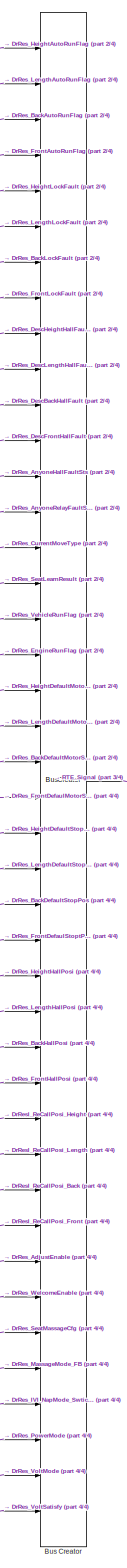
[diagram: UpDataInputInfo/RTE - part 1/4, center side, full height]
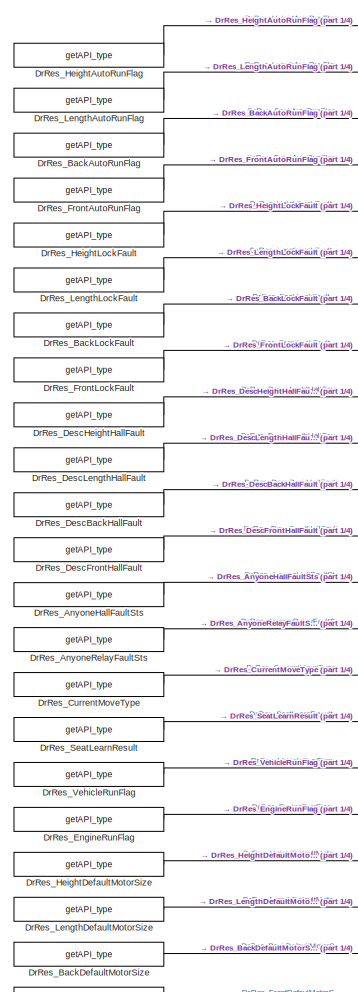
[diagram: UpDataInputInfo/RTE - part 2/4, top left region]
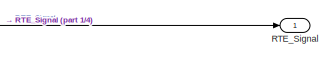
[diagram: UpDataInputInfo/RTE - part 3/4, middle right region]
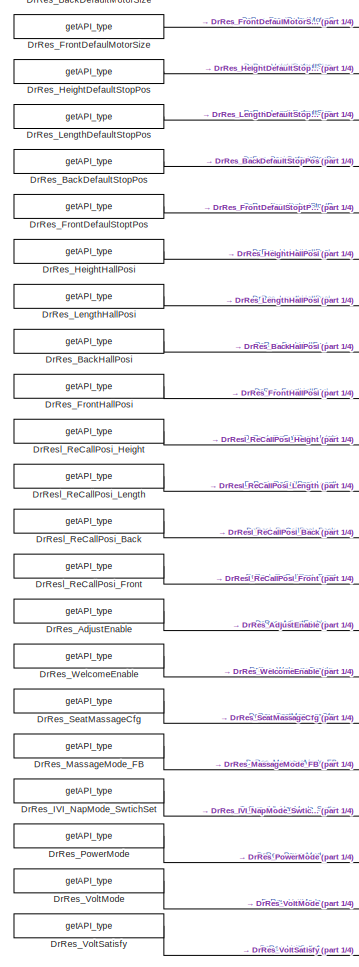
[diagram: UpDataInputInfo/RTE - part 4/4, bottom left region]
BLOCK [SubSystem] UpDataInputInfo/RTE
  AttributesFormatString = %<Description>
  Description = 接口自动生成
  Ports = [0, 1]
  RTWFcnNameOpts = Use subsystem name
  RTWSystemCode = Nonreusable function
  RequestExecContextInheritance = off
  TreatAsAtomicUnit = on
BLOCK [BusCreator] UpDataInputInfo/RTE/Bus Creator
  DisplayOption = bar
  InheritFromInputs = on
  Inputs = 42
  Ports = [42, 1]
BLOCK [Reference] UpDataInputInfo/RTE/DrRes_AdjustEnable  REF=DareLib/Dare/getAPI_type
  AttributesFormatString = %<g_funcname>
  Ports = [0, 1]
  SourceBlock = DareLib/Dare/getAPI_type
  SourceProductName = Dare Library
  SourceType = Dare Custom
BLOCK [Reference] UpDataInputInfo/RTE/DrRes_AnyoneHallFaultSts  REF=DareLib/Dare/getAPI_type
  AttributesFormatString = %<g_funcname>
  Ports = [0, 1]
  SourceBlock = DareLib/Dare/getAPI_type
  SourceProductName = Dare Library
  SourceType = Dare Custom
BLOCK [Reference] UpDataInputInfo/RTE/DrRes_AnyoneRelayFaultSts  REF=DareLib/Dare/getAPI_type
  AttributesFormatString = %<g_funcname>
  Ports = [0, 1]
  SourceBlock = DareLib/Dare/getAPI_type
  SourceProductName = Dare Library
  SourceType = Dare Custom
BLOCK [Reference] UpDataInputInfo/RTE/DrRes_BackAutoRunFlag  REF=DareLib/Dare/getAPI_type
  AttributesFormatString = %<g_funcname>
  Ports = [0, 1]
  SourceBlock = DareLib/Dare/getAPI_type
  SourceProductName = Dare Library
  SourceType = Dare Custom
BLOCK [Reference] UpDataInputInfo/RTE/DrRes_BackDefaultMotorSize  REF=DareLib/Dare/getAPI_type
  AttributesFormatString = %<g_funcname>
  Ports = [0, 1]
  SourceBlock = DareLib/Dare/getAPI_type
  SourceProductName = Dare Library
  SourceType = Dare Custom
BLOCK [Reference] UpDataInputInfo/RTE/DrRes_BackDefaultStopPos  REF=DareLib/Dare/getAPI_type
  AttributesFormatString = %<g_funcname>
  Ports = [0, 1]
  SourceBlock = DareLib/Dare/getAPI_type
  SourceProductName = Dare Library
  SourceType = Dare Custom
BLOCK [Reference] UpDataInputInfo/RTE/DrRes_BackHallPosi  REF=DareLib/Dare/getAPI_type
  AttributesFormatString = %<g_funcname>
  Ports = [0, 1]
  SourceBlock = DareLib/Dare/getAPI_type
  SourceProductName = Dare Library
  SourceType = Dare Custom
BLOCK [Reference] UpDataInputInfo/RTE/DrRes_BackLockFault  REF=DareLib/Dare/getAPI_type
  AttributesFormatString = %<g_funcname>
  Ports = [0, 1]
  SourceBlock = DareLib/Dare/getAPI_type
  SourceProductName = Dare Library
  SourceType = Dare Custom
BLOCK [Reference] UpDataInputInfo/RTE/DrRes_CurrentMoveType  REF=DareLib/Dare/getAPI_type
  AttributesFormatString = %<g_funcname>
  Ports = [0, 1]
  SourceBlock = DareLib/Dare/getAPI_type
  SourceProductName = Dare Library
  SourceType = Dare Custom
BLOCK [Reference] UpDataInputInfo/RTE/DrRes_DescBackHallFault  REF=DareLib/Dare/getAPI_type
  AttributesFormatString = %<g_funcname>
  Ports = [0, 1]
  SourceBlock = DareLib/Dare/getAPI_type
  SourceProductName = Dare Library
  SourceType = Dare Custom
BLOCK [Reference] UpDataInputInfo/RTE/DrRes_DescFrontHallFault  REF=DareLib/Dare/getAPI_type
  AttributesFormatString = %<g_funcname>
  Ports = [0, 1]
  SourceBlock = DareLib/Dare/getAPI_type
  SourceProductName = Dare Library
  SourceType = Dare Custom
BLOCK [Reference] UpDataInputInfo/RTE/DrRes_DescHeightHallFault  REF=DareLib/Dare/getAPI_type
  AttributesFormatString = %<g_funcname>
  Ports = [0, 1]
  SourceBlock = DareLib/Dare/getAPI_type
  SourceProductName = Dare Library
  SourceType = Dare Custom
BLOCK [Reference] UpDataInputInfo/RTE/DrRes_DescLengthHallFault  REF=DareLib/Dare/getAPI_type
  AttributesFormatString = %<g_funcname>
  Ports = [0, 1]
  SourceBlock = DareLib/Dare/getAPI_type
  SourceProductName = Dare Library
  SourceType = Dare Custom
BLOCK [Reference] UpDataInputInfo/RTE/DrRes_EngineRunFlag  REF=DareLib/Dare/getAPI_type
  AttributesFormatString = %<g_funcname>
  Ports = [0, 1]
  SourceBlock = DareLib/Dare/getAPI_type
  SourceProductName = Dare Library
  SourceType = Dare Custom
BLOCK [Reference] UpDataInputInfo/RTE/DrRes_FrontAutoRunFlag  REF=DareLib/Dare/getAPI_type
  AttributesFormatString = %<g_funcname>
  Ports = [0, 1]
  SourceBlock = DareLib/Dare/getAPI_type
  SourceProductName = Dare Library
  SourceType = Dare Custom
BLOCK [Reference] UpDataInputInfo/RTE/DrRes_FrontDefaulMotorSize  REF=DareLib/Dare/getAPI_type
  AttributesFormatString = %<g_funcname>
  Ports = [0, 1]
  SourceBlock = DareLib/Dare/getAPI_type
  SourceProductName = Dare Library
  SourceType = Dare Custom
BLOCK [Reference] UpDataInputInfo/RTE/DrRes_FrontDefaulStoptPos  REF=DareLib/Dare/getAPI_type
  AttributesFormatString = %<g_funcname>
  Ports = [0, 1]
  SourceBlock = DareLib/Dare/getAPI_type
  SourceProductName = Dare Library
  SourceType = Dare Custom
BLOCK [Reference] UpDataInputInfo/RTE/DrRes_FrontHallPosi  REF=DareLib/Dare/getAPI_type
  AttributesFormatString = %<g_funcname>
  Ports = [0, 1]
  SourceBlock = DareLib/Dare/getAPI_type
  SourceProductName = Dare Library
  SourceType = Dare Custom
BLOCK [Reference] UpDataInputInfo/RTE/DrRes_FrontLockFault  REF=DareLib/Dare/getAPI_type
  AttributesFormatString = %<g_funcname>
  Ports = [0, 1]
  SourceBlock = DareLib/Dare/getAPI_type
  SourceProductName = Dare Library
  SourceType = Dare Custom
BLOCK [Reference] UpDataInputInfo/RTE/DrRes_HeightAutoRunFlag  REF=DareLib/Dare/getAPI_type
  AttributesFormatString = %<g_funcname>
  Ports = [0, 1]
  SourceBlock = DareLib/Dare/getAPI_type
  SourceProductName = Dare Library
  SourceType = Dare Custom
BLOCK [Reference] UpDataInputInfo/RTE/DrRes_HeightDefaultMotorSize  REF=DareLib/Dare/getAPI_type
  AttributesFormatString = %<g_funcname>
  Ports = [0, 1]
  SourceBlock = DareLib/Dare/getAPI_type
  SourceProductName = Dare Library
  SourceType = Dare Custom
BLOCK [Reference] UpDataInputInfo/RTE/DrRes_HeightDefaultStopPos  REF=DareLib/Dare/getAPI_type
  AttributesFormatString = %<g_funcname>
  Ports = [0, 1]
  SourceBlock = DareLib/Dare/getAPI_type
  SourceProductName = Dare Library
  SourceType = Dare Custom
BLOCK [Reference] UpDataInputInfo/RTE/DrRes_HeightHallPosi  REF=DareLib/Dare/getAPI_type
  AttributesFormatString = %<g_funcname>
  Ports = [0, 1]
  SourceBlock = DareLib/Dare/getAPI_type
  SourceProductName = Dare Library
  SourceType = Dare Custom
BLOCK [Reference] UpDataInputInfo/RTE/DrRes_HeightLockFault  REF=DareLib/Dare/getAPI_type
  AttributesFormatString = %<g_funcname>
  Ports = [0, 1]
  SourceBlock = DareLib/Dare/getAPI_type
  SourceProductName = Dare Library
  SourceType = Dare Custom
BLOCK [Reference] UpDataInputInfo/RTE/DrRes_IVI_NapMode_SwtichSet  REF=DareLib/Dare/getAPI_type
  AttributesFormatString = %<g_funcname>
  Ports = [0, 1]
  SourceBlock = DareLib/Dare/getAPI_type
  SourceProductName = Dare Library
  SourceType = Dare Custom
BLOCK [Reference] UpDataInputInfo/RTE/DrRes_LengthAutoRunFlag  REF=DareLib/Dare/getAPI_type
  AttributesFormatString = %<g_funcname>
  Ports = [0, 1]
  SourceBlock = DareLib/Dare/getAPI_type
  SourceProductName = Dare Library
  SourceType = Dare Custom
BLOCK [Reference] UpDataInputInfo/RTE/DrRes_LengthDefaultMotorSize  REF=DareLib/Dare/getAPI_type
  AttributesFormatString = %<g_funcname>
  Ports = [0, 1]
  SourceBlock = DareLib/Dare/getAPI_type
  SourceProductName = Dare Library
  SourceType = Dare Custom
BLOCK [Reference] UpDataInputInfo/RTE/DrRes_LengthDefaultStopPos  REF=DareLib/Dare/getAPI_type
  AttributesFormatString = %<g_funcname>
  Ports = [0, 1]
  SourceBlock = DareLib/Dare/getAPI_type
  SourceProductName = Dare Library
  SourceType = Dare Custom
BLOCK [Reference] UpDataInputInfo/RTE/DrRes_LengthHallPosi  REF=DareLib/Dare/getAPI_type
  AttributesFormatString = %<g_funcname>
  Ports = [0, 1]
  SourceBlock = DareLib/Dare/getAPI_type
  SourceProductName = Dare Library
  SourceType = Dare Custom
BLOCK [Reference] UpDataInputInfo/RTE/DrRes_LengthLockFault  REF=DareLib/Dare/getAPI_type
  AttributesFormatString = %<g_funcname>
  Ports = [0, 1]
  SourceBlock = DareLib/Dare/getAPI_type
  SourceProductName = Dare Library
  SourceType = Dare Custom
BLOCK [Reference] UpDataInputInfo/RTE/DrRes_MassageMode_FB  REF=DareLib/Dare/getAPI_type
  AttributesFormatString = %<g_funcname>
  Ports = [0, 1]
  SourceBlock = DareLib/Dare/getAPI_type
  SourceProductName = Dare Library
  SourceType = Dare Custom
BLOCK [Reference] UpDataInputInfo/RTE/DrRes_PowerMode  REF=DareLib/Dare/getAPI_type
  AttributesFormatString = %<g_funcname>
  Ports = [0, 1]
  SourceBlock = DareLib/Dare/getAPI_type
  SourceProductName = Dare Library
  SourceType = Dare Custom
BLOCK [Reference] UpDataInputInfo/RTE/DrRes_SeatLearnResult  REF=DareLib/Dare/getAPI_type
  AttributesFormatString = %<g_funcname>
  Ports = [0, 1]
  SourceBlock = DareLib/Dare/getAPI_type
  SourceProductName = Dare Library
  SourceType = Dare Custom
BLOCK [Reference] UpDataInputInfo/RTE/DrRes_SeatMassageCfg  REF=DareLib/Dare/getAPI_type
  AttributesFormatString = %<g_funcname>
  Ports = [0, 1]
  SourceBlock = DareLib/Dare/getAPI_type
  SourceProductName = Dare Library
  SourceType = Dare Custom
BLOCK [Reference] UpDataInputInfo/RTE/DrRes_VehicleRunFlag  REF=DareLib/Dare/getAPI_type
  AttributesFormatString = %<g_funcname>
  Ports = [0, 1]
  SourceBlock = DareLib/Dare/getAPI_type
  SourceProductName = Dare Library
  SourceType = Dare Custom
BLOCK [Reference] UpDataInputInfo/RTE/DrRes_VoltMode  REF=DareLib/Dare/getAPI_type
  AttributesFormatString = %<g_funcname>
  Ports = [0, 1]
  SourceBlock = DareLib/Dare/getAPI_type
  SourceProductName = Dare Library
  SourceType = Dare Custom
BLOCK [Reference] UpDataInputInfo/RTE/DrRes_VoltSatisfy  REF=DareLib/Dare/getAPI_type
  AttributesFormatString = %<g_funcname>
  Ports = [0, 1]
  SourceBlock = DareLib/Dare/getAPI_type
  SourceProductName = Dare Library
  SourceType = Dare Custom
BLOCK [Reference] UpDataInputInfo/RTE/DrRes_WelcomeEnable  REF=DareLib/Dare/getAPI_type
  AttributesFormatString = %<g_funcname>
  Ports = [0, 1]
  SourceBlock = DareLib/Dare/getAPI_type
  SourceProductName = Dare Library
  SourceType = Dare Custom
BLOCK [Reference] UpDataInputInfo/RTE/DrResl_ReCallPosi_Back  REF=DareLib/Dare/getAPI_type
  AttributesFormatString = %<g_funcname>
  Ports = [0, 1]
  SourceBlock = DareLib/Dare/getAPI_type
  SourceProductName = Dare Library
  SourceType = Dare Custom
BLOCK [Reference] UpDataInputInfo/RTE/DrResl_ReCallPosi_Front  REF=DareLib/Dare/getAPI_type
  AttributesFormatString = %<g_funcname>
  Ports = [0, 1]
  SourceBlock = DareLib/Dare/getAPI_type
  SourceProductName = Dare Library
  SourceType = Dare Custom
BLOCK [Reference] UpDataInputInfo/RTE/DrResl_ReCallPosi_Height  REF=DareLib/Dare/getAPI_type
  AttributesFormatString = %<g_funcname>
  Ports = [0, 1]
  SourceBlock = DareLib/Dare/getAPI_type
  SourceProductName = Dare Library
  SourceType = Dare Custom
BLOCK [Reference] UpDataInputInfo/RTE/DrResl_ReCallPosi_Length  REF=DareLib/Dare/getAPI_type
  AttributesFormatString = %<g_funcname>
  Ports = [0, 1]
  SourceBlock = DareLib/Dare/getAPI_type
  SourceProductName = Dare Library
  SourceType = Dare Custom
BLOCK [Outport] UpDataInputInfo/RTE/RTE_Signal
  IconDisplay = Port number
BLOCK [SubSystem] UpDataOutputInfo
  Ports = [1]
  Priority = 3
  RTWFcnNameOpts = Use subsystem name
  RTWSystemCode = Nonreusable function
  RequestExecContextInheritance = off
  TreatAsAtomicUnit = on
BLOCK [BusSelector] UpDataOutputInfo/Bus Selector
  OutputAsBus = off
  OutputSignals = DSM_MassageLevel_Req,DSM_MassageMode_Req,DSM_NapMode_FB,ResCallPosi_Height,ResCallPosi_Length,ResCallPosi_Back,ResCallPosi_Front,Process2.Res_Stop_Flag.Stop_Flag,Process2.Res_Stop_Flag.Stop_Flag_Reason,Process2.Res_Open_Flag.Open_Flag,Process2.Res_Open_Flag.Open_Flag_Reason,Process2.Res_Close_Flag.Close_Flag,Process2.Res_Close_Flag.Close_Flag_Reason,Process2.MotorFault_Flag,Process2.MassageFault_F...<+393ch>
  Ports = [1, 30]
BLOCK [Reference] UpDataOutputInfo/DSM_MassageLevel_Req  REF=DareLib/Dare/setAPI_type
  AttributesFormatString = %<g_funcname>
  Ports = [1]
  SourceBlock = DareLib/Dare/setAPI_type
  SourceProductName = Dare Library
  SourceType = Dare Custom
BLOCK [Reference] UpDataOutputInfo/DSM_MassageMode_Req  REF=DareLib/Dare/setAPI_type
  AttributesFormatString = %<g_funcname>
  Ports = [1]
  SourceBlock = DareLib/Dare/setAPI_type
  SourceProductName = Dare Library
  SourceType = Dare Custom
BLOCK [Reference] UpDataOutputInfo/DSM_NapMode_FB  REF=DareLib/Dare/setAPI_type
  AttributesFormatString = %<g_funcname>
  Ports = [1]
  SourceBlock = DareLib/Dare/setAPI_type
  SourceProductName = Dare Library
  SourceType = Dare Custom
BLOCK [Reference] UpDataOutputInfo/DSM_NapMode_FB2  REF=DareLib/Dare/setAPI_type
  AttributesFormatString = %<g_funcname>
  Ports = [1]
  SourceBlock = DareLib/Dare/setAPI_type
  SourceProductName = Dare Library
  SourceType = Dare Custom
BLOCK [Reference] UpDataOutputInfo/Flag1  REF=DareLib/Dare/setAPI_type
  AttributesFormatString = %<g_funcname>
  Ports = [1]
  SourceBlock = DareLib/Dare/setAPI_type
  SourceProductName = Dare Library
  SourceType = Dare Custom
BLOCK [Reference] UpDataOutputInfo/Flag10  REF=DareLib/Dare/setAPI_type
  AttributesFormatString = %<g_funcname>
  Ports = [1]
  SourceBlock = DareLib/Dare/setAPI_type
  SourceProductName = Dare Library
  SourceType = Dare Custom
BLOCK [Reference] UpDataOutputInfo/Flag11  REF=DareLib/Dare/setAPI_type
  AttributesFormatString = %<g_funcname>
  Ports = [1]
  SourceBlock = DareLib/Dare/setAPI_type
  SourceProductName = Dare Library
  SourceType = Dare Custom
BLOCK [Reference] UpDataOutputInfo/Flag12  REF=DareLib/Dare/setAPI_type
  AttributesFormatString = %<g_funcname>
  Ports = [1]
  SourceBlock = DareLib/Dare/setAPI_type
  SourceProductName = Dare Library
  SourceType = Dare Custom
BLOCK [Reference] UpDataOutputInfo/Flag13  REF=DareLib/Dare/setAPI_type
  AttributesFormatString = %<g_funcname>
  Ports = [1]
  SourceBlock = DareLib/Dare/setAPI_type
  SourceProductName = Dare Library
  SourceType = Dare Custom
BLOCK [Reference] UpDataOutputInfo/Flag14  REF=DareLib/Dare/setAPI_type
  AttributesFormatString = %<g_funcname>
  Ports = [1]
  SourceBlock = DareLib/Dare/setAPI_type
  SourceProductName = Dare Library
  SourceType = Dare Custom
BLOCK [Reference] UpDataOutputInfo/Flag15  REF=DareLib/Dare/setAPI_type
  AttributesFormatString = %<g_funcname>
  Ports = [1]
  SourceBlock = DareLib/Dare/setAPI_type
  SourceProductName = Dare Library
  SourceType = Dare Custom
BLOCK [Reference] UpDataOutputInfo/Flag16  REF=DareLib/Dare/setAPI_type
  AttributesFormatString = %<g_funcname>
  Ports = [1]
  SourceBlock = DareLib/Dare/setAPI_type
  SourceProductName = Dare Library
  SourceType = Dare Custom
BLOCK [Reference] UpDataOutputInfo/Flag17  REF=DareLib/Dare/setAPI_type
  AttributesFormatString = %<g_funcname>
  Ports = [1]
  SourceBlock = DareLib/Dare/setAPI_type
  SourceProductName = Dare Library
  SourceType = Dare Custom
BLOCK [Reference] UpDataOutputInfo/Flag2  REF=DareLib/Dare/setAPI_type
  AttributesFormatString = %<g_funcname>
  Ports = [1]
  SourceBlock = DareLib/Dare/setAPI_type
  SourceProductName = Dare Library
  SourceType = Dare Custom
BLOCK [Reference] UpDataOutputInfo/Flag3  REF=DareLib/Dare/setAPI_type
  AttributesFormatString = %<g_funcname>
  Ports = [1]
  SourceBlock = DareLib/Dare/setAPI_type
  SourceProductName = Dare Library
  SourceType = Dare Custom
BLOCK [Reference] UpDataOutputInfo/Flag4  REF=DareLib/Dare/setAPI_type
  AttributesFormatString = %<g_funcname>
  Ports = [1]
  SourceBlock = DareLib/Dare/setAPI_type
  SourceProductName = Dare Library
  SourceType = Dare Custom
BLOCK [Reference] UpDataOutputInfo/Flag5  REF=DareLib/Dare/setAPI_type
  AttributesFormatString = %<g_funcname>
  Ports = [1]
  SourceBlock = DareLib/Dare/setAPI_type
  SourceProductName = Dare Library
  SourceType = Dare Custom
BLOCK [Reference] UpDataOutputInfo/Flag6  REF=DareLib/Dare/setAPI_type
  AttributesFormatString = %<g_funcname>
  Ports = [1]
  SourceBlock = DareLib/Dare/setAPI_type
  SourceProductName = Dare Library
  SourceType = Dare Custom
BLOCK [Reference] UpDataOutputInfo/Flag7  REF=DareLib/Dare/setAPI_type
  AttributesFormatString = %<g_funcname>
  Ports = [1]
  SourceBlock = DareLib/Dare/setAPI_type
  SourceProductName = Dare Library
  SourceType = Dare Custom
BLOCK [Reference] UpDataOutputInfo/Flag8  REF=DareLib/Dare/setAPI_type
  AttributesFormatString = %<g_funcname>
  Ports = [1]
  SourceBlock = DareLib/Dare/setAPI_type
  SourceProductName = Dare Library
  SourceType = Dare Custom
BLOCK [Reference] UpDataOutputInfo/Flag9  REF=DareLib/Dare/setAPI_type
  AttributesFormatString = %<g_funcname>
  Ports = [1]
  SourceBlock = DareLib/Dare/setAPI_type
  SourceProductName = Dare Library
  SourceType = Dare Custom
BLOCK [Reference] UpDataOutputInfo/ResCallPosi_Back  REF=DareLib/Dare/setAPI_type
  AttributesFormatString = %<g_funcname>
  Ports = [1]
  SourceBlock = DareLib/Dare/setAPI_type
  SourceProductName = Dare Library
  SourceType = Dare Custom
BLOCK [Reference] UpDataOutputInfo/ResCallPosi_Front  REF=DareLib/Dare/setAPI_type
  AttributesFormatString = %<g_funcname>
  Ports = [1]
  SourceBlock = DareLib/Dare/setAPI_type
  SourceProductName = Dare Library
  SourceType = Dare Custom
BLOCK [Reference] UpDataOutputInfo/ResCallPosi_Height  REF=DareLib/Dare/setAPI_type
  AttributesFormatString = %<g_funcname>
  Ports = [1]
  SourceBlock = DareLib/Dare/setAPI_type
  SourceProductName = Dare Library
  SourceType = Dare Custom
BLOCK [Reference] UpDataOutputInfo/ResCallPosi_Length  REF=DareLib/Dare/setAPI_type
  AttributesFormatString = %<g_funcname>
  Ports = [1]
  SourceBlock = DareLib/Dare/setAPI_type
  SourceProductName = Dare Library
  SourceType = Dare Custom
BLOCK [Inport] UpDataOutputInfo/ResOut
  IconDisplay = Port number
BLOCK [Reference] UpDataOutputInfo/ResReCallPosi_Back  REF=DareLib/Dare/setAPI_type
  AttributesFormatString = %<g_funcname>
  Ports = [1]
  SourceBlock = DareLib/Dare/setAPI_type
  SourceProductName = Dare Library
  SourceType = Dare Custom
BLOCK [Reference] UpDataOutputInfo/ResReCallPosi_Front  REF=DareLib/Dare/setAPI_type
  AttributesFormatString = %<g_funcname>
  Ports = [1]
  SourceBlock = DareLib/Dare/setAPI_type
  SourceProductName = Dare Library
  SourceType = Dare Custom
BLOCK [Reference] UpDataOutputInfo/ResReCallPosi_Height  REF=DareLib/Dare/setAPI_type
  AttributesFormatString = %<g_funcname>
  Ports = [1]
  SourceBlock = DareLib/Dare/setAPI_type
  SourceProductName = Dare Library
  SourceType = Dare Custom
BLOCK [Reference] UpDataOutputInfo/ResReCallPosi_Length  REF=DareLib/Dare/setAPI_type
  AttributesFormatString = %<g_funcname>
  Ports = [1]
  SourceBlock = DareLib/Dare/setAPI_type
  SourceProductName = Dare Library
  SourceType = Dare Custom
BLOCK [Reference] UpDataOutputInfo/State_ResDeal  REF=DareLib/Dare/setAPI_type
  AttributesFormatString = %<g_funcname>
  Ports = [1]
  SourceBlock = DareLib/Dare/setAPI_type
  SourceProductName = Dare Library
  SourceType = Dare Custom
LINE LogicCtrl/Bus Creator:1 -> LogicCtrl/ResOut:1
LINE LogicCtrl/Bus Selector:1 -> LogicCtrl/ResCtrl:1
LINE LogicCtrl/Bus Selector:10 -> LogicCtrl/ResCtrl:10
LINE LogicCtrl/Bus Selector:11 -> LogicCtrl/ResCtrl:11
LINE LogicCtrl/Bus Selector:12 -> LogicCtrl/ResCtrl:12
LINE LogicCtrl/Bus Selector:13 -> LogicCtrl/ResCtrl:13
LINE LogicCtrl/Bus Selector:14 -> LogicCtrl/ResCtrl:14
LINE LogicCtrl/Bus Selector:15 -> LogicCtrl/ResCtrl:15
LINE LogicCtrl/Bus Selector:16 -> LogicCtrl/ResCtrl:16
LINE LogicCtrl/Bus Selector:17 -> LogicCtrl/ResCtrl:17
LINE LogicCtrl/Bus Selector:18 -> LogicCtrl/ResCtrl:18
LINE LogicCtrl/Bus Selector:19 -> LogicCtrl/ResCtrl:19
LINE LogicCtrl/Bus Selector:2 -> LogicCtrl/ResCtrl:2
LINE LogicCtrl/Bus Selector:20 -> LogicCtrl/ResCtrl:20
LINE LogicCtrl/Bus Selector:3 -> LogicCtrl/ResCtrl:3
LINE LogicCtrl/Bus Selector:4 -> LogicCtrl/ResCtrl:4
LINE LogicCtrl/Bus Selector:5 -> LogicCtrl/ResCtrl:5
LINE LogicCtrl/Bus Selector:6 -> LogicCtrl/ResCtrl:6
LINE LogicCtrl/Bus Selector:7 -> LogicCtrl/ResCtrl:7
LINE LogicCtrl/Bus Selector:8 -> LogicCtrl/ResCtrl:8
LINE LogicCtrl/Bus Selector:9 -> LogicCtrl/ResCtrl:9
NET LogicCtrl/Process2:1 -> LogicCtrl/Bus Creator:13, LogicCtrl/Bus Selector:1
LINE LogicCtrl/ResCtrl/CallHallVall_Back:1 -> LogicCtrl/ResCtrl/ResDeal:7
LINE LogicCtrl/ResCtrl/CallHallVall_Front:1 -> LogicCtrl/ResCtrl/ResDeal:8
LINE LogicCtrl/ResCtrl/CallHallVall_Height:1 -> LogicCtrl/ResCtrl/ResDeal:5
LINE LogicCtrl/ResCtrl/CallHallVall_Length:1 -> LogicCtrl/ResCtrl/ResDeal:6
LINE LogicCtrl/ResCtrl/Close_Flag:1 -> LogicCtrl/ResCtrl/ResDeal:15
LINE LogicCtrl/ResCtrl/DrRes_AnyoneRelayFaultSts:1 -> LogicCtrl/ResCtrl/ResDeal:18
LINE LogicCtrl/ResCtrl/DrRes_BackHallPosi:1 -> LogicCtrl/ResCtrl/ResDeal:11
LINE LogicCtrl/ResCtrl/DrRes_CurrentMoveType:1 -> LogicCtrl/ResCtrl/ResDeal:20
LINE LogicCtrl/ResCtrl/DrRes_FrontHallPosi:1 -> LogicCtrl/ResCtrl/ResDeal:12
LINE LogicCtrl/ResCtrl/DrRes_HeightHallPosi:1 -> LogicCtrl/ResCtrl/ResDeal:9
LINE LogicCtrl/ResCtrl/DrRes_LengthHallPosi:1 -> LogicCtrl/ResCtrl/ResDeal:10
LINE LogicCtrl/ResCtrl/DrResl_ReCallPosi_Back:1 -> LogicCtrl/ResCtrl/ResDeal:3
LINE LogicCtrl/ResCtrl/DrResl_ReCallPosi_Front:1 -> LogicCtrl/ResCtrl/ResDeal:4
LINE LogicCtrl/ResCtrl/DrResl_ReCallPosi_Height:1 -> LogicCtrl/ResCtrl/ResDeal:1
LINE LogicCtrl/ResCtrl/DrResl_ReCallPosi_Length:1 -> LogicCtrl/ResCtrl/ResDeal:2
LINE LogicCtrl/ResCtrl/DrRestCAll_Ret:1 -> LogicCtrl/ResCtrl/ResDeal:19
LINE LogicCtrl/ResCtrl/MassageFault_Flag:1 -> LogicCtrl/ResCtrl/ResDeal:17
LINE LogicCtrl/ResCtrl/MotorFault_Flag:1 -> LogicCtrl/ResCtrl/ResDeal:16
LINE LogicCtrl/ResCtrl/Open_Flag:1 -> LogicCtrl/ResCtrl/ResDeal:14
LINE LogicCtrl/ResCtrl/ResDeal:1 -> LogicCtrl/ResCtrl/DSM_MassageLevel_Req:1
LINE LogicCtrl/ResCtrl/ResDeal:10 -> LogicCtrl/ResCtrl/ResReCallPosi_Height:1
LINE LogicCtrl/ResCtrl/ResDeal:11 -> LogicCtrl/ResCtrl/ResReCallPosi_Length:1
LINE LogicCtrl/ResCtrl/ResDeal:12 -> LogicCtrl/ResCtrl/State_ResDeal:1
LINE LogicCtrl/ResCtrl/ResDeal:2 -> LogicCtrl/ResCtrl/DSM_MassageMode_Req:1
LINE LogicCtrl/ResCtrl/ResDeal:3 -> LogicCtrl/ResCtrl/DSM_NapMode_FB:1
LINE LogicCtrl/ResCtrl/ResDeal:4 -> LogicCtrl/ResCtrl/ResCallPosi_Height:1
LINE LogicCtrl/ResCtrl/ResDeal:5 -> LogicCtrl/ResCtrl/ResCallPosi_Length:1
LINE LogicCtrl/ResCtrl/ResDeal:6 -> LogicCtrl/ResCtrl/ResCallPosi_Front:1
LINE LogicCtrl/ResCtrl/ResDeal:7 -> LogicCtrl/ResCtrl/ResCallPosi_Back:1
LINE LogicCtrl/ResCtrl/ResDeal:8 -> LogicCtrl/ResCtrl/ResReCallPosi_Back:1
LINE LogicCtrl/ResCtrl/ResDeal:9 -> LogicCtrl/ResCtrl/ResReCallPosi_Front:1
LINE LogicCtrl/ResCtrl/Stop_Flag:1 -> LogicCtrl/ResCtrl/ResDeal:13
LINE LogicCtrl/ResCtrl:1 -> LogicCtrl/Bus Creator:1
LINE LogicCtrl/ResCtrl:10 -> LogicCtrl/Bus Creator:10
LINE LogicCtrl/ResCtrl:11 -> LogicCtrl/Bus Creator:11
LINE LogicCtrl/ResCtrl:12 -> LogicCtrl/Bus Creator:12
LINE LogicCtrl/ResCtrl:2 -> LogicCtrl/Bus Creator:2
LINE LogicCtrl/ResCtrl:3 -> LogicCtrl/Bus Creator:3
LINE LogicCtrl/ResCtrl:4 -> LogicCtrl/Bus Creator:4
LINE LogicCtrl/ResCtrl:5 -> LogicCtrl/Bus Creator:5
LINE LogicCtrl/ResCtrl:6 -> LogicCtrl/Bus Creator:6
LINE LogicCtrl/ResCtrl:7 -> LogicCtrl/Bus Creator:7
LINE LogicCtrl/ResCtrl:8 -> LogicCtrl/Bus Creator:8
LINE LogicCtrl/ResCtrl:9 -> LogicCtrl/Bus Creator:9
LINE LogicCtrl:1 -> UpDataOutputInfo:1
LINE UpDataInputInfo/InputSignalProcess1/Bus Creator1:1 -> UpDataInputInfo/InputSignalProcess1/Bus Creator:1
LINE UpDataInputInfo/InputSignalProcess1/Bus Creator4:1 -> UpDataInputInfo/InputSignalProcess1/Bus Creator:2
LINE UpDataInputInfo/InputSignalProcess1/Bus Creator5:1 -> UpDataInputInfo/InputSignalProcess1/Bus Creator:3
LINE UpDataInputInfo/InputSignalProcess1/Bus Creator6:1 -> UpDataInputInfo/InputSignalProcess1/Bus Creator:4
LINE UpDataInputInfo/InputSignalProcess1/Bus Creator8:1 -> UpDataInputInfo/InputSignalProcess1/Bus Creator:6
LINE UpDataInputInfo/InputSignalProcess1/Bus Creator:1 -> UpDataInputInfo/InputSignalProcess1/Process1:1
LINE UpDataInputInfo/InputSignalProcess1/Bus Selector1:1 -> UpDataInputInfo/InputSignalProcess1/CC2:1
LINE UpDataInputInfo/InputSignalProcess1/Bus Selector1:2 -> UpDataInputInfo/InputSignalProcess1/CC2:2
LINE UpDataInputInfo/InputSignalProcess1/Bus Selector1:3 -> UpDataInputInfo/InputSignalProcess1/CC2:3
LINE UpDataInputInfo/InputSignalProcess1/Bus Selector2:1 -> UpDataInputInfo/InputSignalProcess1/CC4:1
LINE UpDataInputInfo/InputSignalProcess1/Bus Selector2:2 -> UpDataInputInfo/InputSignalProcess1/CC4:2
LINE UpDataInputInfo/InputSignalProcess1/Bus Selector2:3 -> UpDataInputInfo/InputSignalProcess1/CC4:3
LINE UpDataInputInfo/InputSignalProcess1/Bus Selector2:4 -> UpDataInputInfo/InputSignalProcess1/CC4:4
LINE UpDataInputInfo/InputSignalProcess1/Bus Selector2:5 -> UpDataInputInfo/InputSignalProcess1/CC4:5
LINE UpDataInputInfo/InputSignalProcess1/Bus Selector2:6 -> UpDataInputInfo/InputSignalProcess1/CC4:6
LINE UpDataInputInfo/InputSignalProcess1/Bus Selector2:7 -> UpDataInputInfo/InputSignalProcess1/CC4:7
LINE UpDataInputInfo/InputSignalProcess1/Bus Selector2:8 -> UpDataInputInfo/InputSignalProcess1/CC4:8
LINE UpDataInputInfo/InputSignalProcess1/Bus Selector3:1 -> UpDataInputInfo/InputSignalProcess1/CC3:1
LINE UpDataInputInfo/InputSignalProcess1/Bus Selector3:2 -> UpDataInputInfo/InputSignalProcess1/CC3:2
LINE UpDataInputInfo/InputSignalProcess1/Bus Selector3:3 -> UpDataInputInfo/InputSignalProcess1/CC3:3
LINE UpDataInputInfo/InputSignalProcess1/Bus Selector3:4 -> UpDataInputInfo/InputSignalProcess1/CC3:4
LINE UpDataInputInfo/InputSignalProcess1/Bus Selector4:1 -> UpDataInputInfo/InputSignalProcess1/CallRet:1
LINE UpDataInputInfo/InputSignalProcess1/Bus Selector4:2 -> UpDataInputInfo/InputSignalProcess1/CallRet:2
LINE UpDataInputInfo/InputSignalProcess1/Bus Selector4:3 -> UpDataInputInfo/InputSignalProcess1/CallRet:3
LINE UpDataInputInfo/InputSignalProcess1/Bus Selector4:4 -> UpDataInputInfo/InputSignalProcess1/CallRet:4
LINE UpDataInputInfo/InputSignalProcess1/Bus Selector4:5 -> UpDataInputInfo/InputSignalProcess1/CallRet:5
LINE UpDataInputInfo/InputSignalProcess1/Bus Selector4:6 -> UpDataInputInfo/InputSignalProcess1/CallRet:6
LINE UpDataInputInfo/InputSignalProcess1/Bus Selector4:7 -> UpDataInputInfo/InputSignalProcess1/CallRet:7
LINE UpDataInputInfo/InputSignalProcess1/Bus Selector4:8 -> UpDataInputInfo/InputSignalProcess1/CallRet:8
LINE UpDataInputInfo/InputSignalProcess1/Bus Selector4:9 -> UpDataInputInfo/InputSignalProcess1/CallRet:9
LINE UpDataInputInfo/InputSignalProcess1/Bus Selector5:1 -> UpDataInputInfo/InputSignalProcess1/GetHallValue:1
LINE UpDataInputInfo/InputSignalProcess1/Bus Selector5:2 -> UpDataInputInfo/InputSignalProcess1/GetHallValue:2
LINE UpDataInputInfo/InputSignalProcess1/Bus Selector5:3 -> UpDataInputInfo/InputSignalProcess1/GetHallValue:3
LINE UpDataInputInfo/InputSignalProcess1/Bus Selector5:4 -> UpDataInputInfo/InputSignalProcess1/GetHallValue:4
LINE UpDataInputInfo/InputSignalProcess1/Bus Selector5:5 -> UpDataInputInfo/InputSignalProcess1/GetHallValue:5
LINE UpDataInputInfo/InputSignalProcess1/Bus Selector5:6 -> UpDataInputInfo/InputSignalProcess1/GetHallValue:6
LINE UpDataInputInfo/InputSignalProcess1/Bus Selector5:7 -> UpDataInputInfo/InputSignalProcess1/GetHallValue:7
LINE UpDataInputInfo/InputSignalProcess1/Bus Selector:1 -> UpDataInputInfo/InputSignalProcess1/CC1:1
LINE UpDataInputInfo/InputSignalProcess1/Bus Selector:10 -> UpDataInputInfo/InputSignalProcess1/CC1:10
LINE UpDataInputInfo/InputSignalProcess1/Bus Selector:2 -> UpDataInputInfo/InputSignalProcess1/CC1:2
LINE UpDataInputInfo/InputSignalProcess1/Bus Selector:3 -> UpDataInputInfo/InputSignalProcess1/CC1:3
LINE UpDataInputInfo/InputSignalProcess1/Bus Selector:4 -> UpDataInputInfo/InputSignalProcess1/CC1:4
LINE UpDataInputInfo/InputSignalProcess1/Bus Selector:5 -> UpDataInputInfo/InputSignalProcess1/CC1:5
LINE UpDataInputInfo/InputSignalProcess1/Bus Selector:6 -> UpDataInputInfo/InputSignalProcess1/CC1:6
LINE UpDataInputInfo/InputSignalProcess1/Bus Selector:7 -> UpDataInputInfo/InputSignalProcess1/CC1:7
LINE UpDataInputInfo/InputSignalProcess1/Bus Selector:8 -> UpDataInputInfo/InputSignalProcess1/CC1:8
LINE UpDataInputInfo/InputSignalProcess1/Bus Selector:9 -> UpDataInputInfo/InputSignalProcess1/CC1:9
LINE UpDataInputInfo/InputSignalProcess1/CC1/CC1_Flag:1 -> UpDataInputInfo/InputSignalProcess1/CC1/CC1_Flag :1
LINE UpDataInputInfo/InputSignalProcess1/CC1/CC1_Flag:2 -> UpDataInputInfo/InputSignalProcess1/CC1/CC1_Reason:1
LINE UpDataInputInfo/InputSignalProcess1/CC1/DrRes_AdjustEnable:1 -> UpDataInputInfo/InputSignalProcess1/CC1/CC1_Flag:6
LINE UpDataInputInfo/InputSignalProcess1/CC1/DrRes_CurrentMoveType:1 -> UpDataInputInfo/InputSignalProcess1/CC1/CC1_Flag:3
LINE UpDataInputInfo/InputSignalProcess1/CC1/DrRes_EngineRunFlag:1 -> UpDataInputInfo/InputSignalProcess1/CC1/CC1_Flag:1
LINE UpDataInputInfo/InputSignalProcess1/CC1/DrRes_PowerMode:1 -> UpDataInputInfo/InputSignalProcess1/CC1/CC1_Flag:2
LINE UpDataInputInfo/InputSignalProcess1/CC1/DrRes_SeatLearnResult:1 -> UpDataInputInfo/InputSignalProcess1/CC1/CC1_Flag:5
LINE UpDataInputInfo/InputSignalProcess1/CC1/DrRes_SeatMassageCfg:1 -> UpDataInputInfo/InputSignalProcess1/CC1/CC1_Flag:9
LINE UpDataInputInfo/InputSignalProcess1/CC1/DrRes_VehicleRunFlag:1 -> UpDataInputInfo/InputSignalProcess1/CC1/CC1_Flag:7
LINE UpDataInputInfo/InputSignalProcess1/CC1/DrRes_VoltMode:1 -> UpDataInputInfo/InputSignalProcess1/CC1/CC1_Flag:8
LINE UpDataInputInfo/InputSignalProcess1/CC1/DrRes_VoltSatisfy:1 -> UpDataInputInfo/InputSignalProcess1/CC1/CC1_Flag:10
LINE UpDataInputInfo/InputSignalProcess1/CC1/DrRes_WelcomeEnable:1 -> UpDataInputInfo/InputSignalProcess1/CC1/CC1_Flag:4
LINE UpDataInputInfo/InputSignalProcess1/CC1:1 -> UpDataInputInfo/InputSignalProcess1/Bus Creator1:1
LINE UpDataInputInfo/InputSignalProcess1/CC1:2 -> UpDataInputInfo/InputSignalProcess1/Bus Creator1:2
LINE UpDataInputInfo/InputSignalProcess1/CC2/CC2_Flag:1 -> UpDataInputInfo/InputSignalProcess1/CC2/CC2_Flag :1
LINE UpDataInputInfo/InputSignalProcess1/CC2/CC2_Flag:2 -> UpDataInputInfo/InputSignalProcess1/CC2/CC2_Reason:1
LINE UpDataInputInfo/InputSignalProcess1/CC2/DrRes_AdjustEnable:1 -> UpDataInputInfo/InputSignalProcess1/CC2/CC2_Flag:2
LINE UpDataInputInfo/InputSignalProcess1/CC2/DrRes_SeatLearnResult:1 -> UpDataInputInfo/InputSignalProcess1/CC2/CC2_Flag:1
LINE UpDataInputInfo/InputSignalProcess1/CC2/DrRes_WelcomeEnable:1 -> UpDataInputInfo/InputSignalProcess1/CC2/CC2_Flag:3
LINE UpDataInputInfo/InputSignalProcess1/CC2:1 -> UpDataInputInfo/InputSignalProcess1/Bus Creator4:1
LINE UpDataInputInfo/InputSignalProcess1/CC2:2 -> UpDataInputInfo/InputSignalProcess1/Bus Creator4:2
LINE UpDataInputInfo/InputSignalProcess1/CC3/CC3_Flag:1 -> UpDataInputInfo/InputSignalProcess1/CC3/CC3_Flag :1
LINE UpDataInputInfo/InputSignalProcess1/CC3/CC3_Flag:2 -> UpDataInputInfo/InputSignalProcess1/CC3/CC3_Reason:1
LINE UpDataInputInfo/InputSignalProcess1/CC3/DrRes_EngineRunFlag:1 -> UpDataInputInfo/InputSignalProcess1/CC3/CC3_Flag:4
LINE UpDataInputInfo/InputSignalProcess1/CC3/DrRes_PowerMode:1 -> UpDataInputInfo/InputSignalProcess1/CC3/CC3_Flag:1
LINE UpDataInputInfo/InputSignalProcess1/CC3/DrRes_SeatMassageCfg:1 -> UpDataInputInfo/InputSignalProcess1/CC3/CC3_Flag:3
LINE UpDataInputInfo/InputSignalProcess1/CC3/DrRes_VehicleRunFlag:1 -> UpDataInputInfo/InputSignalProcess1/CC3/CC3_Flag:2
LINE UpDataInputInfo/InputSignalProcess1/CC3:1 -> UpDataInputInfo/InputSignalProcess1/Bus Creator5:1
LINE UpDataInputInfo/InputSignalProcess1/CC3:2 -> UpDataInputInfo/InputSignalProcess1/Bus Creator5:2
LINE UpDataInputInfo/InputSignalProcess1/CC4/CC4_Flag:1 -> UpDataInputInfo/InputSignalProcess1/CC4/CC4_Flag :1
LINE UpDataInputInfo/InputSignalProcess1/CC4/CC4_Flag:2 -> UpDataInputInfo/InputSignalProcess1/CC4/CC4_Reason:1
LINE UpDataInputInfo/InputSignalProcess1/CC4/DrRes_BackLockFault:1 -> UpDataInputInfo/InputSignalProcess1/CC4/CC4_Flag:6
LINE UpDataInputInfo/InputSignalProcess1/CC4/DrRes_DescBackHallFault:1 -> UpDataInputInfo/InputSignalProcess1/CC4/CC4_Flag:2
LINE UpDataInputInfo/InputSignalProcess1/CC4/DrRes_DescFrontHallFault:1 -> UpDataInputInfo/InputSignalProcess1/CC4/CC4_Flag:3
LINE UpDataInputInfo/InputSignalProcess1/CC4/DrRes_DescHeightHallFault:1 -> UpDataInputInfo/InputSignalProcess1/CC4/CC4_Flag:1
LINE UpDataInputInfo/InputSignalProcess1/CC4/DrRes_DescLengthHallFault:1 -> UpDataInputInfo/InputSignalProcess1/CC4/CC4_Flag:4
LINE UpDataInputInfo/InputSignalProcess1/CC4/DrRes_FrontLockFault:1 -> UpDataInputInfo/InputSignalProcess1/CC4/CC4_Flag:7
LINE UpDataInputInfo/InputSignalProcess1/CC4/DrRes_HeightLockFault:1 -> UpDataInputInfo/InputSignalProcess1/CC4/CC4_Flag:8
LINE UpDataInputInfo/InputSignalProcess1/CC4/DrRes_LengthLockFault:1 -> UpDataInputInfo/InputSignalProcess1/CC4/CC4_Flag:5
LINE UpDataInputInfo/InputSignalProcess1/CC4:1 -> UpDataInputInfo/InputSignalProcess1/Bus Creator6:1
LINE UpDataInputInfo/InputSignalProcess1/CC4:2 -> UpDataInputInfo/InputSignalProcess1/Bus Creator6:2
LINE UpDataInputInfo/InputSignalProcess1/CallRet/DrRes_BackAutoRunFlag:1 -> UpDataInputInfo/InputSignalProcess1/CallRet/GetCallRet:3
LINE UpDataInputInfo/InputSignalProcess1/CallRet/DrRes_BackLockFault:1 -> UpDataInputInfo/InputSignalProcess1/CallRet/GetCallRet:7
LINE UpDataInputInfo/InputSignalProcess1/CallRet/DrRes_CurrentMoveType:1 -> UpDataInputInfo/InputSignalProcess1/CallRet/GetCallRet:9
LINE UpDataInputInfo/InputSignalProcess1/CallRet/DrRes_FrontAutoRunFlag:1 -> UpDataInputInfo/InputSignalProcess1/CallRet/GetCallRet:4
LINE UpDataInputInfo/InputSignalProcess1/CallRet/DrRes_FrontLockFault:1 -> UpDataInputInfo/InputSignalProcess1/CallRet/GetCallRet:8
LINE UpDataInputInfo/InputSignalProcess1/CallRet/DrRes_HeightAutoRunFlag:1 -> UpDataInputInfo/InputSignalProcess1/CallRet/GetCallRet:1
LINE UpDataInputInfo/InputSignalProcess1/CallRet/DrRes_HeightLockFault:1 -> UpDataInputInfo/InputSignalProcess1/CallRet/GetCallRet:5
LINE UpDataInputInfo/InputSignalProcess1/CallRet/DrRes_LengthAutoRunFlag:1 -> UpDataInputInfo/InputSignalProcess1/CallRet/GetCallRet:2
LINE UpDataInputInfo/InputSignalProcess1/CallRet/DrRes_LengthLockFault:1 -> UpDataInputInfo/InputSignalProcess1/CallRet/GetCallRet:6
LINE UpDataInputInfo/InputSignalProcess1/CallRet/GetCallRet:1 -> UpDataInputInfo/InputSignalProcess1/CallRet/CallRet:1
LINE UpDataInputInfo/InputSignalProcess1/CallRet:1 -> UpDataInputInfo/InputSignalProcess1/Bus Creator:5
LINE UpDataInputInfo/InputSignalProcess1/GetHallValue/Char_CallHallVall_Length:1 -> UpDataInputInfo/InputSignalProcess1/GetHallValue/CallHallVall_Length:1
LINE UpDataInputInfo/InputSignalProcess1/GetHallValue/Constant1:1 -> UpDataInputInfo/InputSignalProcess1/GetHallValue/Char_CallHallVall_Length:4
LINE UpDataInputInfo/InputSignalProcess1/GetHallValue/Constant2:1 -> UpDataInputInfo/InputSignalProcess1/GetHallValue/GetHallValue2:3
LINE UpDataInputInfo/InputSignalProcess1/GetHallValue/Constant6:1 -> UpDataInputInfo/InputSignalProcess1/GetHallValue/Char_CallHallVall_Length:5
LINE UpDataInputInfo/InputSignalProcess1/GetHallValue/DrRes_BackDefaultMotorSize:1 -> UpDataInputInfo/InputSignalProcess1/GetHallValue/GetHallValue2:1
LINE UpDataInputInfo/InputSignalProcess1/GetHallValue/DrRes_BackDefaultStopPos:1 -> UpDataInputInfo/InputSignalProcess1/GetHallValue/GetHallValue2:2
LINE UpDataInputInfo/InputSignalProcess1/GetHallValue/DrRes_FrontHallPosi:1 -> UpDataInputInfo/InputSignalProcess1/GetHallValue/CallHallVall_Front:1
LINE UpDataInputInfo/InputSignalProcess1/GetHallValue/DrRes_HeightHallPosi:1 -> UpDataInputInfo/InputSignalProcess1/GetHallValue/CallHallVall_Height:1
LINE UpDataInputInfo/InputSignalProcess1/GetHallValue/DrRes_LengthDefaultMotorSize:1 -> UpDataInputInfo/InputSignalProcess1/GetHallValue/Char_CallHallVall_Length:2
LINE UpDataInputInfo/InputSignalProcess1/GetHallValue/DrRes_LengthDefaultStopPos:1 -> UpDataInputInfo/InputSignalProcess1/GetHallValue/Char_CallHallVall_Length:1
LINE UpDataInputInfo/InputSignalProcess1/GetHallValue/DrRes_LengthHallPosi:1 -> UpDataInputInfo/InputSignalProcess1/GetHallValue/Char_CallHallVall_Length:3
LINE UpDataInputInfo/InputSignalProcess1/GetHallValue/GetHallValue2:1 -> UpDataInputInfo/InputSignalProcess1/GetHallValue/CallHallVall_Back:1
LINE UpDataInputInfo/InputSignalProcess1/GetHallValue:1 -> UpDataInputInfo/InputSignalProcess1/Bus Creator8:1
LINE UpDataInputInfo/InputSignalProcess1/GetHallValue:2 -> UpDataInputInfo/InputSignalProcess1/Bus Creator8:2
LINE UpDataInputInfo/InputSignalProcess1/GetHallValue:3 -> UpDataInputInfo/InputSignalProcess1/Bus Creator8:3
LINE UpDataInputInfo/InputSignalProcess1/GetHallValue:4 -> UpDataInputInfo/InputSignalProcess1/Bus Creator8:4
NET UpDataInputInfo/InputSignalProcess1/Rte_SignalBus:1 -> UpDataInputInfo/InputSignalProcess1/Bus Creator:7, UpDataInputInfo/InputSignalProcess1/Bus Selector1:1, UpDataInputInfo/InputSignalProcess1/Bus Selector2:1, UpDataInputInfo/InputSignalProcess1/Bus Selector3:1, UpDataInputInfo/InputSignalProcess1/Bus Selector4:1, UpDataInputInfo/InputSignalProcess1/Bus Selector5:1, UpDataInputInfo/InputSignalProcess1/Bus Selector:1
LINE UpDataInputInfo/InputSignalProcess1:1 -> UpDataInputInfo/InputSignalProcess2:1
LINE UpDataInputInfo/InputSignalProcess2/Bus Creator1:1 -> UpDataInputInfo/InputSignalProcess2/Bus Creator:1
LINE UpDataInputInfo/InputSignalProcess2/Bus Creator4:1 -> UpDataInputInfo/InputSignalProcess2/Bus Creator:2
LINE UpDataInputInfo/InputSignalProcess2/Bus Creator5:1 -> UpDataInputInfo/InputSignalProcess2/Bus Creator:3
LINE UpDataInputInfo/InputSignalProcess2/Bus Creator:1 -> UpDataInputInfo/InputSignalProcess2/Process2:1
LINE UpDataInputInfo/InputSignalProcess2/Bus Selector1:1 -> UpDataInputInfo/InputSignalProcess2/OPEN:1
LINE UpDataInputInfo/InputSignalProcess2/Bus Selector1:2 -> UpDataInputInfo/InputSignalProcess2/OPEN:2
LINE UpDataInputInfo/InputSignalProcess2/Bus Selector1:3 -> UpDataInputInfo/InputSignalProcess2/OPEN:3
LINE UpDataInputInfo/InputSignalProcess2/Bus Selector1:4 -> UpDataInputInfo/InputSignalProcess2/OPEN:4
LINE UpDataInputInfo/InputSignalProcess2/Bus Selector2:1 -> UpDataInputInfo/InputSignalProcess2/MotorFault:1
LINE UpDataInputInfo/InputSignalProcess2/Bus Selector3:1 -> UpDataInputInfo/InputSignalProcess2/CLOSE:1
LINE UpDataInputInfo/InputSignalProcess2/Bus Selector3:2 -> UpDataInputInfo/InputSignalProcess2/CLOSE:2
LINE UpDataInputInfo/InputSignalProcess2/Bus Selector3:3 -> UpDataInputInfo/InputSignalProcess2/CLOSE:3
LINE UpDataInputInfo/InputSignalProcess2/Bus Selector3:4 -> UpDataInputInfo/InputSignalProcess2/CLOSE:4
LINE UpDataInputInfo/InputSignalProcess2/Bus Selector4:1 -> UpDataInputInfo/InputSignalProcess2/MassageFault:1
LINE UpDataInputInfo/InputSignalProcess2/Bus Selector5:1 -> UpDataInputInfo/InputSignalProcess2/GetDrRestCAllRet:1
LINE UpDataInputInfo/InputSignalProcess2/Bus Selector:1 -> UpDataInputInfo/InputSignalProcess2/STOP:1
LINE UpDataInputInfo/InputSignalProcess2/Bus Selector:2 -> UpDataInputInfo/InputSignalProcess2/STOP:2
LINE UpDataInputInfo/InputSignalProcess2/Bus Selector:3 -> UpDataInputInfo/InputSignalProcess2/STOP:3
LINE UpDataInputInfo/InputSignalProcess2/CLOSE/CC3_Flag:1 -> UpDataInputInfo/InputSignalProcess2/CLOSE/Colse_Flag:4
LINE UpDataInputInfo/InputSignalProcess2/CLOSE/Colse_Flag:1 -> UpDataInputInfo/InputSignalProcess2/CLOSE/Colse_Flag :1
LINE UpDataInputInfo/InputSignalProcess2/CLOSE/Colse_Flag:2 -> UpDataInputInfo/InputSignalProcess2/CLOSE/Colse_Flag_Reason:1
LINE UpDataInputInfo/InputSignalProcess2/CLOSE/DrRes_AnyoneRelayFaultSts:1 -> UpDataInputInfo/InputSignalProcess2/CLOSE/Colse_Flag:3
LINE UpDataInputInfo/InputSignalProcess2/CLOSE/DrRes_IVI_NapMode_SwtichSet:1 -> UpDataInputInfo/InputSignalProcess2/CLOSE/Colse_Flag:2
LINE UpDataInputInfo/InputSignalProcess2/CLOSE/DrRes_MassageMode_FB:1 -> UpDataInputInfo/InputSignalProcess2/CLOSE/Colse_Flag:1
LINE UpDataInputInfo/InputSignalProcess2/CLOSE:1 -> UpDataInputInfo/InputSignalProcess2/Bus Creator5:1
LINE UpDataInputInfo/InputSignalProcess2/CLOSE:2 -> UpDataInputInfo/InputSignalProcess2/Bus Creator5:2
LINE UpDataInputInfo/InputSignalProcess2/GetDrRestCAllRet/CallRet:1 -> UpDataInputInfo/InputSignalProcess2/GetDrRestCAllRet/DrRestCAllRet:1
LINE UpDataInputInfo/InputSignalProcess2/GetDrRestCAllRet:1 -> UpDataInputInfo/InputSignalProcess2/Bus Creator:6
LINE UpDataInputInfo/InputSignalProcess2/MassageFault/DrRes_MassageMode_FB:1 -> UpDataInputInfo/InputSignalProcess2/MassageFault/MassageFault_Flag:1
LINE UpDataInputInfo/InputSignalProcess2/MassageFault/MassageFault_Flag:1 -> UpDataInputInfo/InputSignalProcess2/MassageFault/MassageFault_Flag :1
LINE UpDataInputInfo/InputSignalProcess2/MassageFault:1 -> UpDataInputInfo/InputSignalProcess2/Bus Creator:5
LINE UpDataInputInfo/InputSignalProcess2/MotorFault/CC4_Flag:1 -> UpDataInputInfo/InputSignalProcess2/MotorFault/MotorFault_Flag:1
LINE UpDataInputInfo/InputSignalProcess2/MotorFault/MotorFault_Flag:1 -> UpDataInputInfo/InputSignalProcess2/MotorFault/MotroFault_Flag :1
LINE UpDataInputInfo/InputSignalProcess2/MotorFault:1 -> UpDataInputInfo/InputSignalProcess2/Bus Creator:4
LINE UpDataInputInfo/InputSignalProcess2/OPEN/CC1_Flag:1 -> UpDataInputInfo/InputSignalProcess2/OPEN/Open_Flag:2
LINE UpDataInputInfo/InputSignalProcess2/OPEN/DrRes_AnyoneRelayFaultSts:1 -> UpDataInputInfo/InputSignalProcess2/OPEN/Open_Flag:4
LINE UpDataInputInfo/InputSignalProcess2/OPEN/DrRes_IVI_NapMode_SwtichSet:1 -> UpDataInputInfo/InputSignalProcess2/OPEN/Open_Flag:3
LINE UpDataInputInfo/InputSignalProcess2/OPEN/DrRes_MassageMode_FB:1 -> UpDataInputInfo/InputSignalProcess2/OPEN/Open_Flag:1
LINE UpDataInputInfo/InputSignalProcess2/OPEN/Open_Flag:1 -> UpDataInputInfo/InputSignalProcess2/OPEN/Open_Flag :1
LINE UpDataInputInfo/InputSignalProcess2/OPEN/Open_Flag:2 -> UpDataInputInfo/InputSignalProcess2/OPEN/Open_Flag_Reason:1
LINE UpDataInputInfo/InputSignalProcess2/OPEN:1 -> UpDataInputInfo/InputSignalProcess2/Bus Creator4:1
LINE UpDataInputInfo/InputSignalProcess2/OPEN:2 -> UpDataInputInfo/InputSignalProcess2/Bus Creator4:2
NET UpDataInputInfo/InputSignalProcess2/Process1:1 -> UpDataInputInfo/InputSignalProcess2/Bus Creator:7, UpDataInputInfo/InputSignalProcess2/Bus Selector1:1, UpDataInputInfo/InputSignalProcess2/Bus Selector2:1, UpDataInputInfo/InputSignalProcess2/Bus Selector3:1, UpDataInputInfo/InputSignalProcess2/Bus Selector4:1, UpDataInputInfo/InputSignalProcess2/Bus Selector5:1, UpDataInputInfo/InputSignalProcess2/Bus Selector:1
LINE UpDataInputInfo/InputSignalProcess2/STOP/CC2_Flag:1 -> UpDataInputInfo/InputSignalProcess2/STOP/Stop_Flag:1
LINE UpDataInputInfo/InputSignalProcess2/STOP/DrRes_VoltMode:1 -> UpDataInputInfo/InputSignalProcess2/STOP/Stop_Flag:2
LINE UpDataInputInfo/InputSignalProcess2/STOP/DrRes_VoltSatisfy:1 -> UpDataInputInfo/InputSignalProcess2/STOP/Stop_Flag:3
LINE UpDataInputInfo/InputSignalProcess2/STOP/Stop_Flag:1 -> UpDataInputInfo/InputSignalProcess2/STOP/Stop_Flag :1
LINE UpDataInputInfo/InputSignalProcess2/STOP/Stop_Flag:2 -> UpDataInputInfo/InputSignalProcess2/STOP/Stop_Flag_Reason:1
LINE UpDataInputInfo/InputSignalProcess2/STOP:1 -> UpDataInputInfo/InputSignalProcess2/Bus Creator1:1
LINE UpDataInputInfo/InputSignalProcess2/STOP:2 -> UpDataInputInfo/InputSignalProcess2/Bus Creator1:2
LINE UpDataInputInfo/InputSignalProcess2:1 -> UpDataInputInfo/Process2:1
LINE UpDataInputInfo/RTE/Bus Creator:1 -> UpDataInputInfo/RTE/RTE_Signal:1
LINE UpDataInputInfo/RTE/DrRes_AdjustEnable:1 -> UpDataInputInfo/RTE/Bus Creator:35
LINE UpDataInputInfo/RTE/DrRes_AnyoneHallFaultSts:1 -> UpDataInputInfo/RTE/Bus Creator:13
LINE UpDataInputInfo/RTE/DrRes_AnyoneRelayFaultSts:1 -> UpDataInputInfo/RTE/Bus Creator:14
LINE UpDataInputInfo/RTE/DrRes_BackAutoRunFlag:1 -> UpDataInputInfo/RTE/Bus Creator:3
LINE UpDataInputInfo/RTE/DrRes_BackDefaultMotorSize:1 -> UpDataInputInfo/RTE/Bus Creator:21
LINE UpDataInputInfo/RTE/DrRes_BackDefaultStopPos:1 -> UpDataInputInfo/RTE/Bus Creator:25
LINE UpDataInputInfo/RTE/DrRes_BackHallPosi:1 -> UpDataInputInfo/RTE/Bus Creator:29
LINE UpDataInputInfo/RTE/DrRes_BackLockFault:1 -> UpDataInputInfo/RTE/Bus Creator:7
LINE UpDataInputInfo/RTE/DrRes_CurrentMoveType:1 -> UpDataInputInfo/RTE/Bus Creator:15
LINE UpDataInputInfo/RTE/DrRes_DescBackHallFault:1 -> UpDataInputInfo/RTE/Bus Creator:11
LINE UpDataInputInfo/RTE/DrRes_DescFrontHallFault:1 -> UpDataInputInfo/RTE/Bus Creator:12
LINE UpDataInputInfo/RTE/DrRes_DescHeightHallFault:1 -> UpDataInputInfo/RTE/Bus Creator:9
LINE UpDataInputInfo/RTE/DrRes_DescLengthHallFault:1 -> UpDataInputInfo/RTE/Bus Creator:10
LINE UpDataInputInfo/RTE/DrRes_EngineRunFlag:1 -> UpDataInputInfo/RTE/Bus Creator:18
LINE UpDataInputInfo/RTE/DrRes_FrontAutoRunFlag:1 -> UpDataInputInfo/RTE/Bus Creator:4
LINE UpDataInputInfo/RTE/DrRes_FrontDefaulMotorSize:1 -> UpDataInputInfo/RTE/Bus Creator:22
LINE UpDataInputInfo/RTE/DrRes_FrontDefaulStoptPos:1 -> UpDataInputInfo/RTE/Bus Creator:26
LINE UpDataInputInfo/RTE/DrRes_FrontHallPosi:1 -> UpDataInputInfo/RTE/Bus Creator:30
LINE UpDataInputInfo/RTE/DrRes_FrontLockFault:1 -> UpDataInputInfo/RTE/Bus Creator:8
LINE UpDataInputInfo/RTE/DrRes_HeightAutoRunFlag:1 -> UpDataInputInfo/RTE/Bus Creator:1
LINE UpDataInputInfo/RTE/DrRes_HeightDefaultMotorSize:1 -> UpDataInputInfo/RTE/Bus Creator:19
LINE UpDataInputInfo/RTE/DrRes_HeightDefaultStopPos:1 -> UpDataInputInfo/RTE/Bus Creator:23
LINE UpDataInputInfo/RTE/DrRes_HeightHallPosi:1 -> UpDataInputInfo/RTE/Bus Creator:27
LINE UpDataInputInfo/RTE/DrRes_HeightLockFault:1 -> UpDataInputInfo/RTE/Bus Creator:5
LINE UpDataInputInfo/RTE/DrRes_IVI_NapMode_SwtichSet:1 -> UpDataInputInfo/RTE/Bus Creator:39
LINE UpDataInputInfo/RTE/DrRes_LengthAutoRunFlag:1 -> UpDataInputInfo/RTE/Bus Creator:2
LINE UpDataInputInfo/RTE/DrRes_LengthDefaultMotorSize:1 -> UpDataInputInfo/RTE/Bus Creator:20
LINE UpDataInputInfo/RTE/DrRes_LengthDefaultStopPos:1 -> UpDataInputInfo/RTE/Bus Creator:24
LINE UpDataInputInfo/RTE/DrRes_LengthHallPosi:1 -> UpDataInputInfo/RTE/Bus Creator:28
LINE UpDataInputInfo/RTE/DrRes_LengthLockFault:1 -> UpDataInputInfo/RTE/Bus Creator:6
LINE UpDataInputInfo/RTE/DrRes_MassageMode_FB:1 -> UpDataInputInfo/RTE/Bus Creator:38
LINE UpDataInputInfo/RTE/DrRes_PowerMode:1 -> UpDataInputInfo/RTE/Bus Creator:40
LINE UpDataInputInfo/RTE/DrRes_SeatLearnResult:1 -> UpDataInputInfo/RTE/Bus Creator:16
LINE UpDataInputInfo/RTE/DrRes_SeatMassageCfg:1 -> UpDataInputInfo/RTE/Bus Creator:37
LINE UpDataInputInfo/RTE/DrRes_VehicleRunFlag:1 -> UpDataInputInfo/RTE/Bus Creator:17
LINE UpDataInputInfo/RTE/DrRes_VoltMode:1 -> UpDataInputInfo/RTE/Bus Creator:41
LINE UpDataInputInfo/RTE/DrRes_VoltSatisfy:1 -> UpDataInputInfo/RTE/Bus Creator:42
LINE UpDataInputInfo/RTE/DrRes_WelcomeEnable:1 -> UpDataInputInfo/RTE/Bus Creator:36
LINE UpDataInputInfo/RTE/DrResl_ReCallPosi_Back:1 -> UpDataInputInfo/RTE/Bus Creator:33
LINE UpDataInputInfo/RTE/DrResl_ReCallPosi_Front:1 -> UpDataInputInfo/RTE/Bus Creator:34
LINE UpDataInputInfo/RTE/DrResl_ReCallPosi_Height:1 -> UpDataInputInfo/RTE/Bus Creator:31
LINE UpDataInputInfo/RTE/DrResl_ReCallPosi_Length:1 -> UpDataInputInfo/RTE/Bus Creator:32
LINE UpDataInputInfo/RTE:1 -> UpDataInputInfo/InputSignalProcess1:1
LINE UpDataInputInfo:1 -> LogicCtrl:1
LINE UpDataOutputInfo/Bus Selector:1 -> UpDataOutputInfo/DSM_MassageLevel_Req:1
LINE UpDataOutputInfo/Bus Selector:10 -> UpDataOutputInfo/Flag3:1
LINE UpDataOutputInfo/Bus Selector:11 -> UpDataOutputInfo/Flag4:1
LINE UpDataOutputInfo/Bus Selector:12 -> UpDataOutputInfo/Flag5:1
LINE UpDataOutputInfo/Bus Selector:13 -> UpDataOutputInfo/Flag6:1
LINE UpDataOutputInfo/Bus Selector:14 -> UpDataOutputInfo/Flag7:1
LINE UpDataOutputInfo/Bus Selector:15 -> UpDataOutputInfo/Flag8:1
LINE UpDataOutputInfo/Bus Selector:16 -> UpDataOutputInfo/Flag9:1
LINE UpDataOutputInfo/Bus Selector:17 -> UpDataOutputInfo/Flag10:1
LINE UpDataOutputInfo/Bus Selector:18 -> UpDataOutputInfo/Flag11:1
LINE UpDataOutputInfo/Bus Selector:19 -> UpDataOutputInfo/Flag12:1
LINE UpDataOutputInfo/Bus Selector:2 -> UpDataOutputInfo/DSM_MassageMode_Req:1
LINE UpDataOutputInfo/Bus Selector:20 -> UpDataOutputInfo/Flag13:1
LINE UpDataOutputInfo/Bus Selector:21 -> UpDataOutputInfo/Flag14:1
LINE UpDataOutputInfo/Bus Selector:22 -> UpDataOutputInfo/Flag15:1
LINE UpDataOutputInfo/Bus Selector:23 -> UpDataOutputInfo/Flag16:1
LINE UpDataOutputInfo/Bus Selector:24 -> UpDataOutputInfo/Flag17:1
LINE UpDataOutputInfo/Bus Selector:25 -> UpDataOutputInfo/ResReCallPosi_Height:1
LINE UpDataOutputInfo/Bus Selector:26 -> UpDataOutputInfo/ResReCallPosi_Length:1
LINE UpDataOutputInfo/Bus Selector:27 -> UpDataOutputInfo/ResReCallPosi_Back:1
LINE UpDataOutputInfo/Bus Selector:28 -> UpDataOutputInfo/ResReCallPosi_Front:1
LINE UpDataOutputInfo/Bus Selector:29 -> UpDataOutputInfo/DSM_NapMode_FB2:1
LINE UpDataOutputInfo/Bus Selector:3 -> UpDataOutputInfo/DSM_NapMode_FB:1
LINE UpDataOutputInfo/Bus Selector:30 -> UpDataOutputInfo/State_ResDeal:1
LINE UpDataOutputInfo/Bus Selector:4 -> UpDataOutputInfo/ResCallPosi_Height:1
LINE UpDataOutputInfo/Bus Selector:5 -> UpDataOutputInfo/ResCallPosi_Length:1
LINE UpDataOutputInfo/Bus Selector:6 -> UpDataOutputInfo/ResCallPosi_Back:1
LINE UpDataOutputInfo/Bus Selector:7 -> UpDataOutputInfo/ResCallPosi_Front:1
LINE UpDataOutputInfo/Bus Selector:8 -> UpDataOutputInfo/Flag1:1
LINE UpDataOutputInfo/Bus Selector:9 -> UpDataOutputInfo/Flag2:1
LINE UpDataOutputInfo/ResOut:1 -> UpDataOutputInfo/Bus Selector:1
note: NET lines group one-source signal fan-out (src -> all destinations, sorted); 1:1 wires keep LINE
CHART UpDataInputInfo/InputSignalProcess1/CC3/CC3_Flag states=3 transitions=9
  STATE_LABEL 'Init\nen:\nCC3_Flag = FALSE;'
  STATE_LABEL 'TRUE\nen:\nCC3_Flag = TRUE;\nCC3_Reason = FALSE;'
  STATE_LABEL 'FALSE\nen:\nCC3_Flag = FALSE;'
CHART UpDataInputInfo/InputSignalProcess1/CallRet/GetCallRet states=4 transitions=4
  STATE_LABEL 'Ret'
  STATE_LABEL 'Fail\nen:\nCallRet = enResCallRet.EN_Fail;'
  STATE_LABEL 'Succeed\nen:\nCallRet = enResCallRet.EN_Success;'
  STATE_LABEL 'Fail\nen:\nCallRet = enResCallRet.EN_Fail;'
  STATE_LABEL 'Succeed\nen:\nCallRet = enResCallRet.EN_Success;'
  STATE_LABEL 'Init\nen:\nCallRet = enResCallRet.EN_Init;'
CHART UpDataInputInfo/InputSignalProcess2/STOP/Stop_Flag states=3 transitions=7
  STATE_LABEL 'FALSE\nen:\nStop_Flag = FALSE;'
  STATE_LABEL 'Init\nen:\nStop_Flag = FALSE;'
  STATE_LABEL 'TRUE\nen:\nStop_Flag = TRUE;\nStop_Flag_Reason = FALSE;'
CHART UpDataInputInfo/InputSignalProcess1/GetHallValue/Char_CallHallVall_Length states=1 transitions=11
  STATE_LABEL 'Char_CallHallVall_Length\nen:Temp_Drs_Distance = (DrRes_LengthDefaultMotorSize * D_ClickNapLengthPosi)/100;\ndu:\n'
  STATE_LABEL '/*计算后移坐标与后软止点坐标  */\n{Temp_Drs_Posi = DrRes_LengthHallPosi -  Temp_Drs_Distance;\nTemp_Drs_SoftStopPosi = (DrRes_LengthDefaultStopPos + D_SoftDistanceDrLegnth)}'
  STATE_LABEL '/*后移坐标大于软止点坐标 - 可移动到后移坐标 */\n[Temp_Drs_Posi > Temp_Drs_SoftStopPosi]'
  STATE_LABEL '{CallHallVall_Length = Temp_Drs_Posi}'
  STATE_LABEL '/* 当前坐标小于后止点坐标 不动作*/\n[DrRes_LengthHallPosi <= Temp_Drs_SoftStopPosi]'
  STATE_LABEL '{CallHallVall_Length = Temp_Drs_SoftStopPosi}'
  STATE_LABEL '{CallHallVall_Length = 0;}'
CHART UpDataInputInfo/InputSignalProcess1/CC2/CC2_Flag states=3 transitions=9
  STATE_LABEL 'Init\nen:\nCC2_Flag = FALSE;'
  STATE_LABEL 'FALSE\nen:\nCC2_Flag = FALSE;'
  STATE_LABEL 'TRUE\nen:\nCC2_Flag = TRUE;\nCC2_Reason = FALSE;'
CHART UpDataInputInfo/InputSignalProcess1/CC4/CC4_Flag states=2 transitions=3
  STATE_LABEL 'FALSE\nen:\nCC4_Flag = FALSE;'
  STATE_LABEL 'TRUE\nen:\nCC4_Flag = TRUE;\nCC4_Reason = FALSE;'
CHART LogicCtrl/ResCtrl/ResDeal states=11 transitions=29
  STATE_LABEL 'SaveResReCallPosi(In1,ln2,In3,ln4)'
  STATE_LABEL 'SetResCallPosi(In1,ln2,In3,ln4)'
  STATE_LABEL 'Inactive\nen:\nDSM_NapMode_FB = enNapMode.EN_NapMode_Close;'
  STATE_LABEL 'WaitInit\nen:\nSaveReTimer = 0;\nWaitTimer = 0;\nStartFlag = 0;\ndu:\nWaitTimer += 1;\nex:\nSaveReTimer = 3;'
  STATE_LABEL 'Init\nen:\nResCallPosi_Height = 0;\nResCallPosi_Length = 0;\nResCallPosi_Back = 0;\nResCallPosi_Front = 0;\nState_ResDeal = 1;\nStartFlag = TRUE;\nSavePosiCnt = 10;\nex:\nSaveReTimer = 0;\n'
  STATE_LABEL '/* 延迟20ms存储 */\n[SaveReTimer  > 2]'
  STATE_LABEL '[hasChangedTo(DrRes_CurrentMoveType,0) ...\n|| DrResl_ReCallPosi_Height == 0 ...\n|| DrResl_ReCallPosi_Length == 0 ...\n|| DrResl_ReCallPosi_Back == 0 ...\n|| DrResl_ReCallPosi_Front == 0 ...\n|| DrResl_ReCallPosi_Height == 0xFFFF ...\n|| DrResl_ReCallPosi_Length == 0xFFFF ...\n|| DrResl_ReCallPosi_Back == 0xFFFF ...\n|| DrResl_ReCallPosi_Front == 0xFFFF]'
  STATE_LABEL '{SaveReTimer ++;}'
  STATE_LABEL '{SavePosiCnt = 0;}'
  STATE_LABEL '/* 缓存次数未超 */\n[SavePosiCnt < 10]'
  STATE_LABEL '/* 更新回位位置 */\n{SaveResReCallPosi ...\n(DrRes_HeightHallPosi, ...\nDrRes_LengthHallPosi, ...\nDrRes_BackHallPosi, ...\nDrRes_FrontHallPosi);\nSavePosiCnt++;}'
  STATE_LABEL '{TempCallPosi_Height = CallHallVall_Height;\nTempCallPosi_Length = CallHallVall_Length;\nTempCallPosi_Back = CallHallVall_Back;\nTempCallPosi_Front = CallHallVall_Front;\nSetResCallPosi(TempCallPosi_Height, TempCallPosi_Length,...\n TempCallPosi_Back, TempCallPosi_Front)}'
  STATE_LABEL 'ReCall\nen:\nState_ResDeal = 2;'
  STATE_LABEL '/* 位置读取完成 */\n[WaitTimer >= 20]'
  STATE_LABEL '/*小憩调用成功标志==1\n||小憩调用失败标志==1\n||小憩停止动作标志==1*/\n[Stop_Flag == TRUE ...\n|| DrRestCAll_Ret != enResCallRet.EN_Init]'
  STATE_LABEL 'WaitInit\nen:\nSaveReTimer = 0;\nWaitTimer = 0;\nStartFlag = 0;\ndu:\nWaitTimer += 1;\nex:\nSaveReTimer = 3;'
  STATE_LABEL 'Init\nen:\nResCallPosi_Height = 0;\nResCallPosi_Length = 0;\nResCallPosi_Back = 0;\nResCallPosi_Front = 0;\nState_ResDeal = 1;\nStartFlag = TRUE;\nSavePosiCnt = 10;\nex:\nSaveReTimer = 0;\n'
  STATE_LABEL '/* 延迟20ms存储 */\n[SaveReTimer  > 2]'
  STATE_LABEL '[hasChangedTo(DrRes_CurrentMoveType,0) ...\n|| DrResl_ReCallPosi_Height == 0 ...\n|| DrResl_ReCallPosi_Length == 0 ...\n|| DrResl_ReCallPosi_Back == 0 ...\n|| DrResl_ReCallPosi_Front == 0 ...\n|| DrResl_ReCallPosi_Height == 0xFFFF ...\n|| DrResl_ReCallPosi_Length == 0xFFFF ...\n|| DrResl_ReCallPosi_Back == 0xFFFF ...\n|| DrResl_ReCallPosi_Front == 0xFFFF]'
  STATE_LABEL '{SaveReTimer ++;}'
  STATE_LABEL '{SavePosiCnt = 0;}'
  STATE_LABEL '/* 缓存次数未超 */\n[SavePosiCnt < 10]'
  STATE_LABEL '/* 更新回位位置 */\n{SaveResReCallPosi ...\n(DrRes_HeightHallPosi, ...\nDrRes_LengthHallPosi, ...\nDrRes_BackHallPosi, ...\nDrRes_FrontHallPosi);\nSavePosiCnt++;}'
  STATE_LABEL '{TempCallPosi_Height = CallHallVall_Height;\nTempCallPosi_Length = CallHallVall_Length;\nTempCallPosi_Back = CallHallVall_Back;\nTempCallPosi_Front = CallHallVall_Front;\nSetResCallPosi(TempCallPosi_Height, TempCallPosi_Length,...\n TempCallPosi_Back, TempCallPosi_Front)}'
  STATE_LABEL 'ReCall\nen:\nState_ResDeal = 2;'
  STATE_LABEL 'Active\nen:\nDSM_NapMode_FB = enNapMode.EN_NapMode_Open;'
  STATE_LABEL '调用位置=标定坐标 纵向距前硬止点80mm、靠背距前硬止点65°、高度和前部保持不动'
  STATE_LABEL 'Call\nen:\nState_ResDeal = 3;\nResCallPosi_Height = TempCallPosi_Height;\nResCallPosi_Length = TempCallPosi_Length;\nResCallPosi_Back = TempCallPosi_Back;\nResCallPosi_Front = TempCallPosi_Front;\nDSM_MassageLevel_Req=enMassageLevel_DSM.EN_L3;\nDSM_MassageMode_Req=enMassageMode_DSM.EN_M1\nRestReUpdatePosiFlag = 0;\n'
  STATE_LABEL 'CallOver\nen:\nState_ResDeal = 4;\nResCallPosi_Height = 0;\nResCallPosi_Length = 0;\nResCallPosi_Back = 0;\nResCallPosi_Front = 0;'
  STATE_LABEL '/*小憩调用成功标志==1\n||小憩调用失败标志==1*/\n[DrRestCAll_Ret != enResCallRet.EN_Init]'
  STATE_LABEL '调用位置=标定坐标 纵向距前硬止点80mm、靠背距前硬止点65°、高度和前部保持不动'
  STATE_LABEL 'Call\nen:\nState_ResDeal = 3;\nResCallPosi_Height = TempCallPosi_Height;\nResCallPosi_Length = TempCallPosi_Length;\nResCallPosi_Back = TempCallPosi_Back;\nResCallPosi_Front = TempCallPosi_Front;\nDSM_MassageLevel_Req=enMassageLevel_DSM.EN_L3;\nDSM_MassageMode_Req=enMassageMode_DSM.EN_M1\nRestReUpdatePosiFlag = 0;\n'
  STATE_LABEL 'CallOver\nen:\nState_ResDeal = 4;\nResCallPosi_Height = 0;\nResCallPosi_Length = 0;\nResCallPosi_Back = 0;\nResCallPosi_Front = 0;'
  STATE_LABEL 'Fault\nen:\nState_ResDeal = 5;\nDSM_NapMode_FB = EN_NapMode_ERR;\nResCallPosi_Height = 0;\nResCallPosi_Length = 0;\nResCallPosi_Back = 0;\nResCallPosi_Front = 0;\nRestReUpdatePosiFlag = 1;'
CHART UpDataInputInfo/InputSignalProcess1/CC1/CC1_Flag states=3 transitions=19
  STATE_LABEL 'Init\nen:\nCC1_Flag = TRUE;\nCC1_Reason = FALSE;'
  STATE_LABEL 'FALSE\nen:\nCC1_Flag = FALSE;'
  STATE_LABEL 'TRUE\nen:\nCC1_Flag = TRUE;\nCC1_Reason = FALSE;'
CHART UpDataInputInfo/InputSignalProcess2/OPEN/Open_Flag states=4 transitions=11
  STATE_LABEL 'FALSE\nen:\nOpen_Flag = FALSE;'
  STATE_LABEL 'Ready\nen:\nOpen_Flag = FALSE;\nOpen_Flag_Reason = FALSE;\nRequestTimer = 0;'
  STATE_LABEL 'Open\nen:\nOpen_Flag = TRUE;\nOpen_Flag_Reason = FALSE;\nRequestTimer = 0;\ndu:\nRequestTimer ++;'
  STATE_LABEL 'Init\nen:\nOpen_Flag = FALSE;'
CHART UpDataInputInfo/InputSignalProcess2/CLOSE/Colse_Flag states=5 transitions=11
  STATE_LABEL 'Init'
  STATE_LABEL 'Init\nen:\nClose_Flag = FALSE;'
  STATE_LABEL 'FALSE\nen:\nClose_Flag = FALSE;'
  STATE_LABEL 'Ready\nen:\nClose_Flag = FALSE;\nClose_Flag_Reason = FALSE;\nRequestTimer = 0;'
  STATE_LABEL '/* (PC7&&PC11&&C5)||CC3\n无主驾座椅任一方向继电器粘连故障\n&& 按摩模块无故障：DSM_MassageMode_FB≠0x8：Error模块故障\n */\n[DrRes_AnyoneRelayFaultSts != TRUE ...\n|| DrRes_MassageMode_FB != enMassageMode_DSM.EN_MError]'
  STATE_LABEL '/* (PC7&&PC11&&C5)||CC3\n无主驾座椅任一方向继电器粘连故障\n&& 按摩模块无故障：DSM_MassageMode_FB≠0x8：Error模块故障\n */\n[DrRes_AnyoneRelayFaultSts != TRUE ...\n|| DrRes_MassageMode_FB != enMassageMode_DSM.EN_MError]'
  STATE_LABEL '/*Close_Flag未置位原因 ：DrRes_AnyoneRelayFaultSts不满足条件 */\n[DrRes_AnyoneRelayFaultSts == TRUE]\n{Close_Flag_Reason = 1}'
  STATE_LABEL '/*Close_Flag未置位原因 ：DrRes_AnyoneRelayFaultSts不满足条件 */\n[DrRes_AnyoneRelayFaultSts == TRUE]\n{Close_Flag_Reason = 1}'
  STATE_LABEL '/*Close_Flag未置位原因 ：DrRes_MassageMode_FB不满足条件 */\n[DrRes_MassageMode_FB == enMassageMode_DSM.EN_MError]\n{Close_Flag_Reason = 2}'
  STATE_LABEL '/*Close_Flag未置位原因 ：DrRes_MassageMode_FB不满足条件 */\n[DrRes_MassageMode_FB == enMassageMode_DSM.EN_MError]\n{Close_Flag_Reason = 2}'
  STATE_LABEL 'Init\nen:\nClose_Flag = FALSE;'
  STATE_LABEL 'FALSE\nen:\nClose_Flag = FALSE;'
  STATE_LABEL 'Ready\nen:\nClose_Flag = FALSE;\nClose_Flag_Reason = FALSE;\nRequestTimer = 0;'
  STATE_LABEL 'CLOSE\nen:\nClose_Flag = TRUE;\nRequestTimer = 0;\ndu:\nRequestTimer ++;\n'
CHART UpDataInputInfo/InputSignalProcess2/MotorFault/MotorFault_Flag states=2 transitions=3
  STATE_LABEL 'FALSE\nen:\nMotroFault_Flag = FALSE;'
  STATE_LABEL 'TRUE\nen:\nMotroFault_Flag = TRUE;\n'
CHART UpDataInputInfo/InputSignalProcess2/MassageFault/MassageFault_Flag states=2 transitions=3
  STATE_LABEL 'FALSE\nen:\nMassageFault_Flag = FALSE;'
  STATE_LABEL 'TRUE\nen:\nMassageFault_Flag = TRUE;\n'
